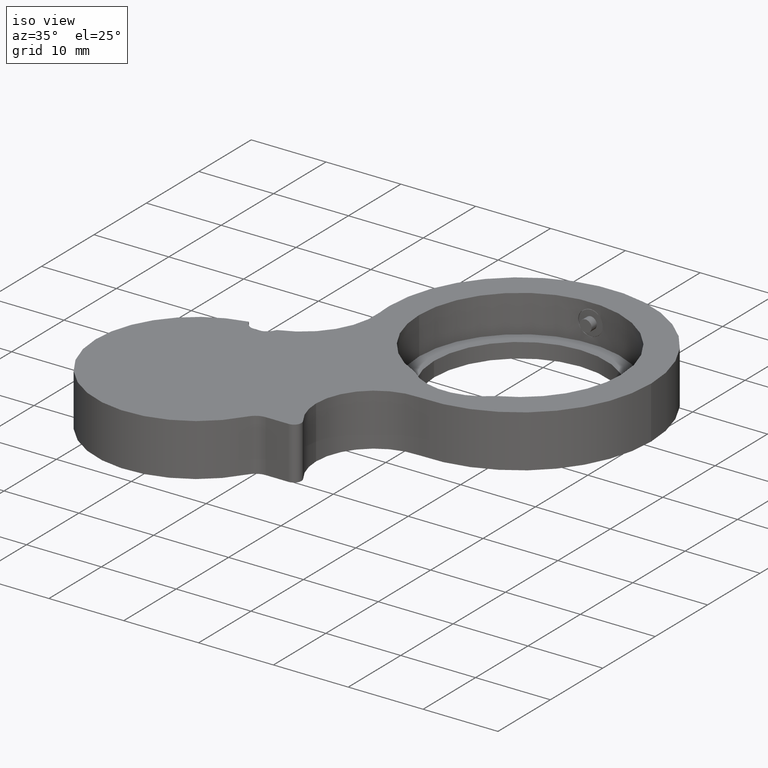
[diagram: clean part render]
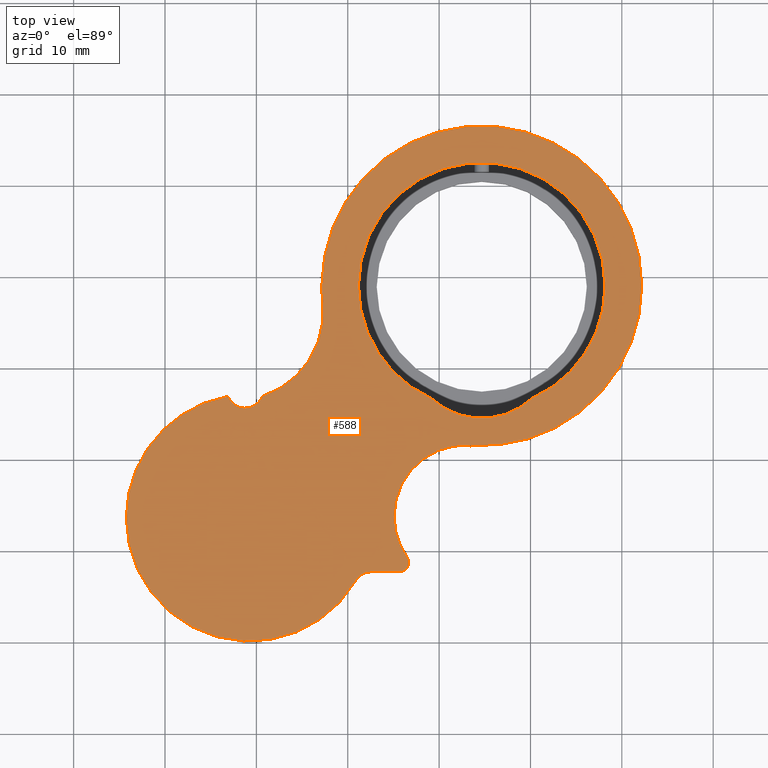
[diagram: tour spotlight — one face highlighted and labeled with its STEP entity id]
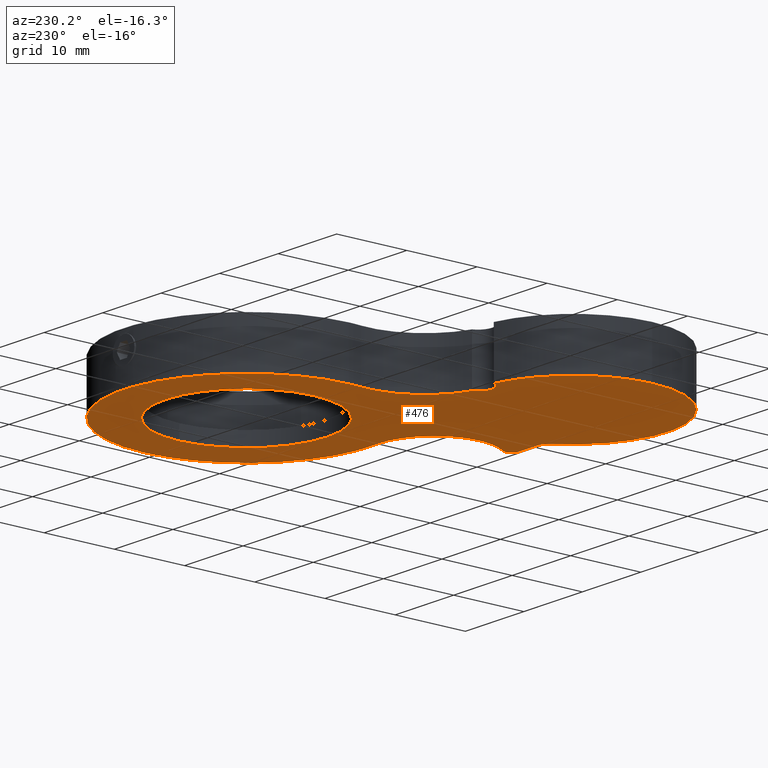
[diagram: tour spotlight — one face highlighted and labeled with its STEP entity id]
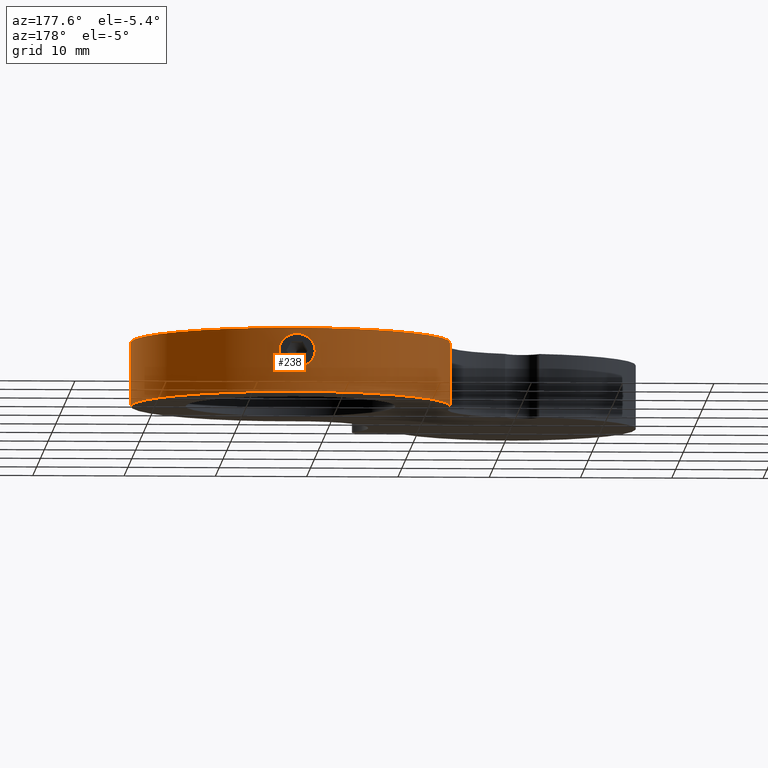
[diagram: tour spotlight — one face highlighted and labeled with its STEP entity id]
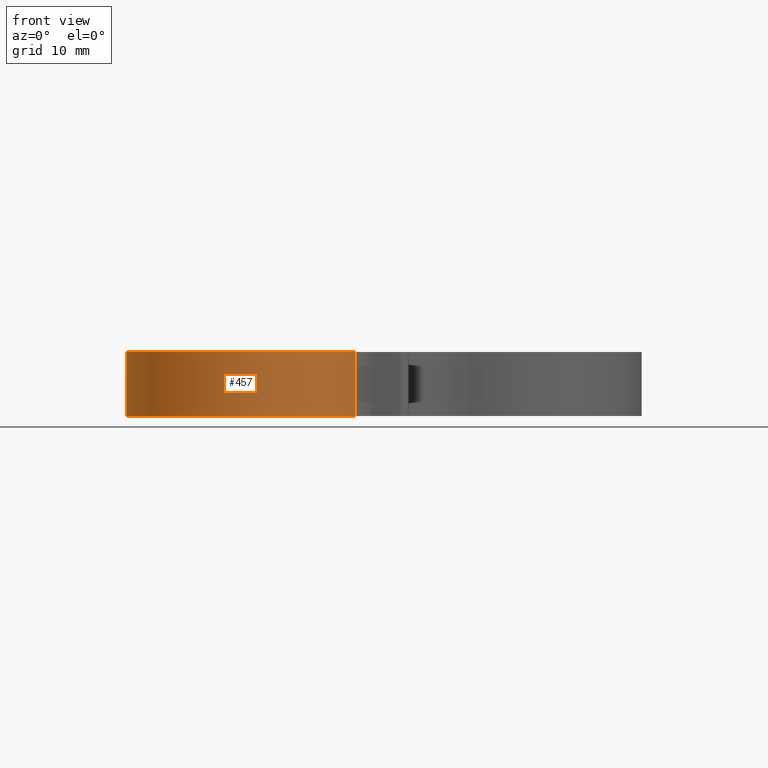
[diagram: tour spotlight — one face highlighted and labeled with its STEP entity id]
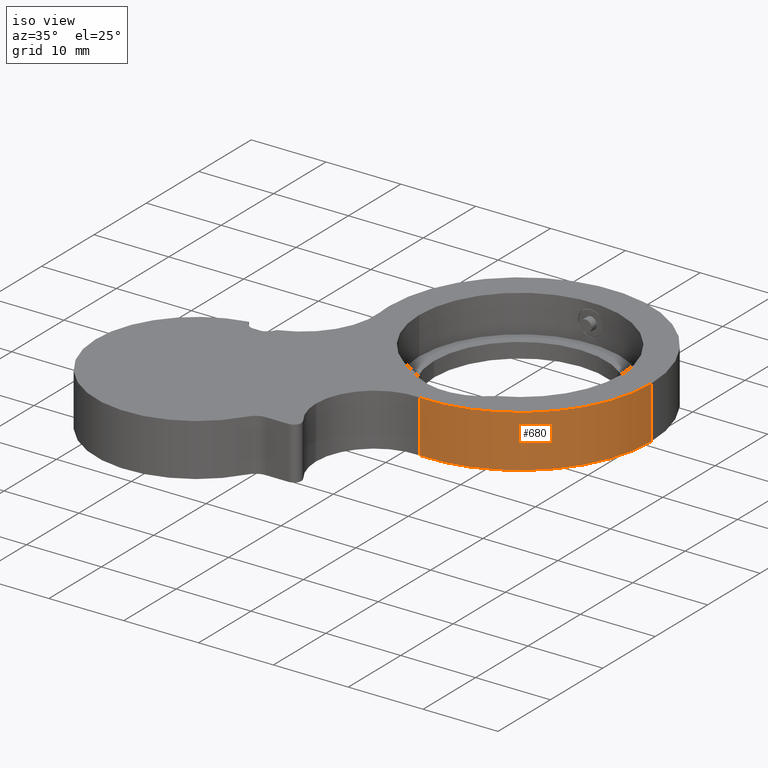
[diagram: tour spotlight — one face highlighted and labeled with its STEP entity id]
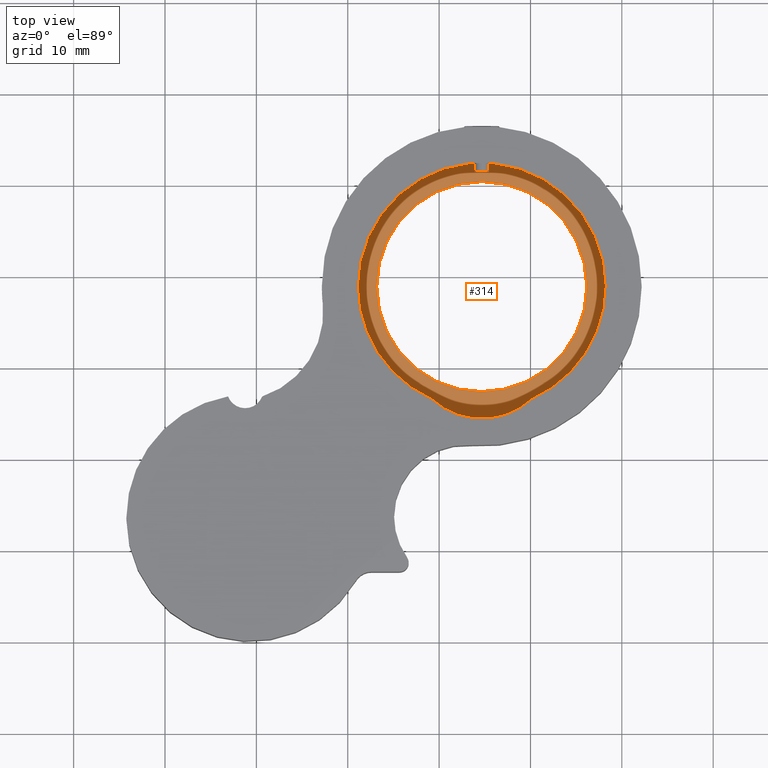
[diagram: tour spotlight — one face highlighted and labeled with its STEP entity id]
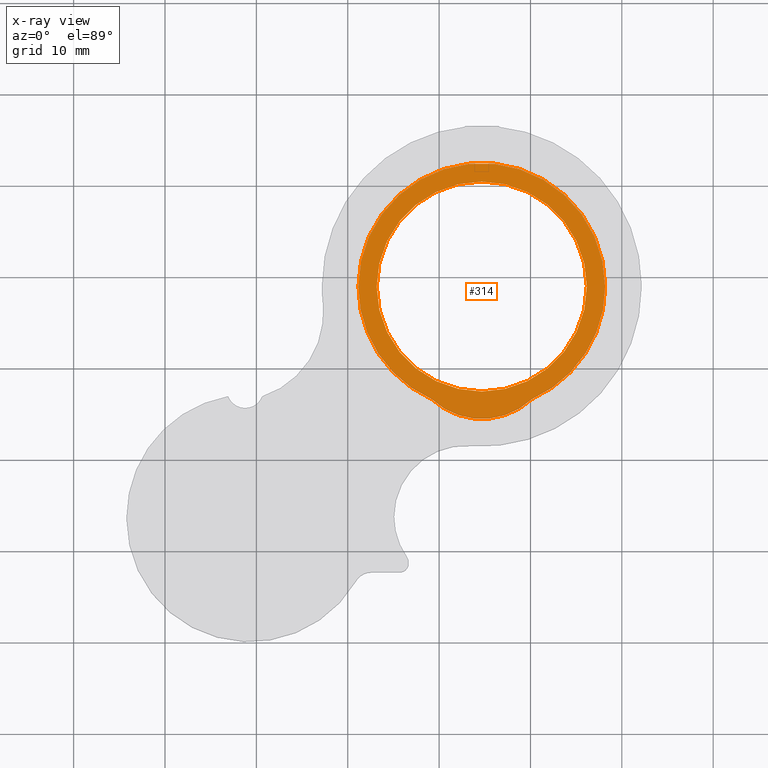
[diagram: x-ray of the same camera — body ghosted, this tour face saturated]
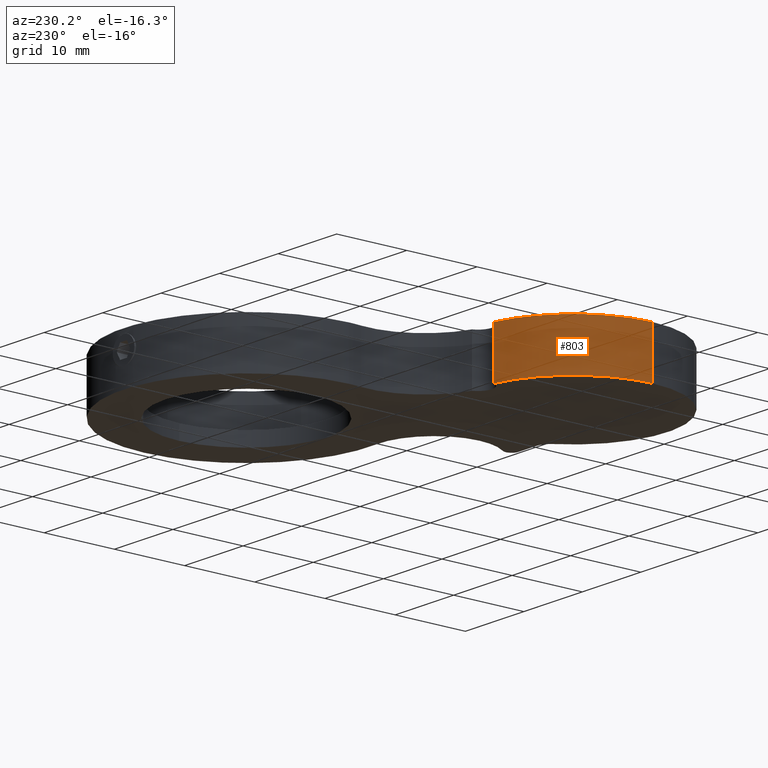
[diagram: tour spotlight — one face highlighted and labeled with its STEP entity id]
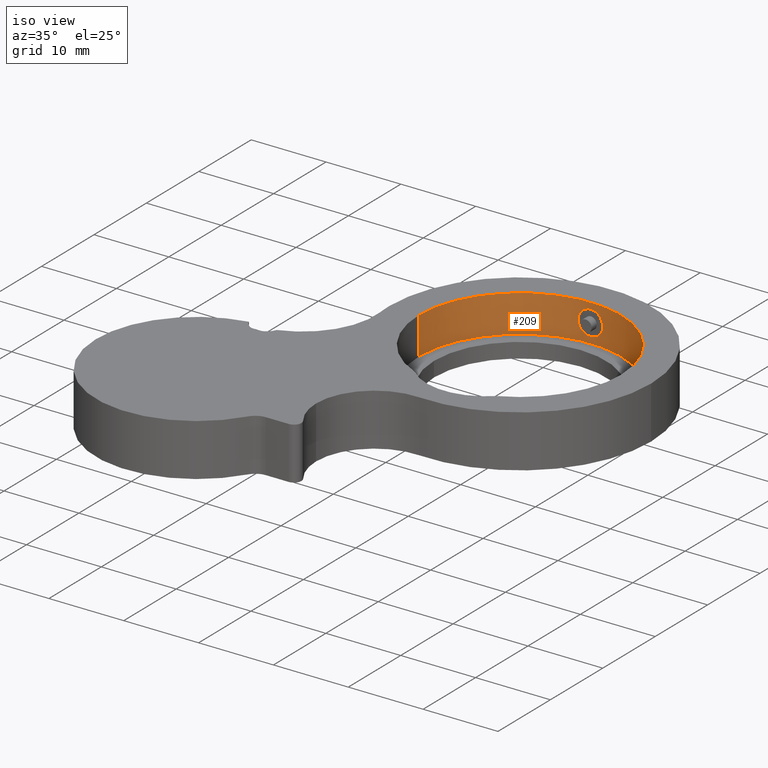
[diagram: tour spotlight — one face highlighted and labeled with its STEP entity id]
A machine part: a face-by-face anatomy tour. The part has 46 B-rep faces; the first image is the clean iso view, then the 8 largest visible faces are spotlighted one at a time (largest first), each with its STEP entity span.

Face 1 — top view, entity #588. In plain terms, the highlighted planar face has unit normal (-0, 0, -1).
Definition (entity closure, byte-faithful):
#1 = DIRECTION ( 'NONE',  ( -0.0000000000000000000, -0.0000000000000000000, -1.000000000000000000 ) ) ;
#19 = VERTEX_POINT ( 'NONE', #845 ) ;
#66 = CIRCLE ( 'NONE', #741, 17.50000000000000000 ) ;
#83 = EDGE_CURVE ( 'NONE', #1373, #19, #1330, .T. ) ;
#85 = AXIS2_PLACEMENT_3D ( 'NONE', #1129, #1463, #520 ) ;
#95 = DIRECTION ( 'NONE',  ( -0.0000000000000000000, -0.0000000000000000000, -1.000000000000000000 ) ) ;
#113 = ORIENTED_EDGE ( 'NONE', *, *, #1356, .T. ) ;
#114 = CARTESIAN_POINT ( 'NONE',  ( 2.604254786024343000, -12.33030543774678000, 59.50000000000000700 ) ) ;
#141 = ORIENTED_EDGE ( 'NONE', *, *, #646, .T. ) ;
#143 = EDGE_CURVE ( 'NONE', #760, #772, #1126, .T. ) ;
#159 = EDGE_CURVE ( 'NONE', #772, #350, #1364, .T. ) ;
#161 = DIRECTION ( 'NONE',  ( -0.0000000000000000000, -0.0000000000000000000, -1.000000000000000000 ) ) ;
#162 = CIRCLE ( 'NONE', #629, 9.699999999999999300 ) ;
#204 = DIRECTION ( 'NONE',  ( 1.000000000000000000, 0.0000000000000000000, 0.0000000000000000000 ) ) ;
#210 = CARTESIAN_POINT ( 'NONE',  ( 2.604254786024343000, -14.33030543774678000, 59.50000000000000700 ) ) ;
#215 = CARTESIAN_POINT ( 'NONE',  ( -10.73141167651137800, -6.430305437746779000, 59.50000000000000700 ) ) ;
#227 = DIRECTION ( 'NONE',  ( 0.0000000000000000000, 0.0000000000000000000, 1.000000000000000000 ) ) ;
#232 = EDGE_CURVE ( 'NONE', #1016, #268, #657, .T. ) ;
#237 = ORIENTED_EDGE ( 'NONE', *, *, #1404, .T. ) ;
#246 = AXIS2_PLACEMENT_3D ( 'NONE', #1311, #473, #974 ) ;
#248 = ORIENTED_EDGE ( 'NONE', *, *, #83, .T. ) ;
#268 = VERTEX_POINT ( 'NONE', #753 ) ;
#274 = VERTEX_POINT ( 'NONE', #1007 ) ;
#279 = DIRECTION ( 'NONE',  ( 0.0000000000000000000, 0.0000000000000000000, 1.000000000000000000 ) ) ;
#292 = CARTESIAN_POINT ( 'NONE',  ( 2.604254786024343000, -12.33030543774678000, 59.50000000000000700 ) ) ;
#297 = EDGE_CURVE ( 'NONE', #1348, #1060, #1366, .T. ) ;
#325 = CARTESIAN_POINT ( 'NONE',  ( 6.489555347423251200, -10.75483806787127800, 59.50000000000000700 ) ) ;
#339 = DIRECTION ( 'NONE',  ( 1.000000000000000000, 0.0000000000000000000, 0.0000000000000000000 ) ) ;
#347 = VERTEX_POINT ( 'NONE', #428 ) ;
#350 = VERTEX_POINT ( 'NONE', #545 ) ;
#352 = DIRECTION ( 'NONE',  ( 0.0000000000000000000, 0.0000000000000000000, 1.000000000000000000 ) ) ;
#372 = AXIS2_PLACEMENT_3D ( 'NONE', #215, #1403, #551 ) ;
#375 = CARTESIAN_POINT ( 'NONE',  ( 14.66858832348862100, 18.96969456225321700, 59.50000000000000700 ) ) ;
#379 = CIRCLE ( 'NONE', #484, 13.49999999999999800 ) ;
#397 = CARTESIAN_POINT ( 'NONE',  ( 5.671730606902049700, -12.33030543774678000, 59.50000000000000700 ) ) ;
#409 = CARTESIAN_POINT ( 'NONE',  ( 14.66858832348862100, 18.96969456225321700, 59.50000000000000700 ) ) ;
#428 = CARTESIAN_POINT ( 'NONE',  ( 0.8835236295681222500, -13.31095059903709900, 59.50000000000000700 ) ) ;
#436 = ORIENTED_EDGE ( 'NONE', *, *, #159, .T. ) ;
#449 = CARTESIAN_POINT ( 'NONE',  ( 32.16858832348862100, 18.96969456225322000, 59.50000000000000700 ) ) ;
#450 = ORIENTED_EDGE ( 'NONE', *, *, #612, .T. ) ;
#473 = DIRECTION ( 'NONE',  ( 0.0000000000000000000, 0.0000000000000000000, 1.000000000000000000 ) ) ;
#474 = AXIS2_PLACEMENT_3D ( 'NONE', #1307, #591, #714 ) ;
#484 = AXIS2_PLACEMENT_3D ( 'NONE', #409, #1242, #1362 ) ;
#503 = DIRECTION ( 'NONE',  ( 1.000000000000000000, 0.0000000000000000000, 0.0000000000000000000 ) ) ;
#508 = DIRECTION ( 'NONE',  ( 0.0000000000000000000, 0.0000000000000000000, 1.000000000000000000 ) ) ;
#515 = CARTESIAN_POINT ( 'NONE',  ( 14.66858832348862100, 18.96969456225321700, 59.50000000000000700 ) ) ;
#520 = DIRECTION ( 'NONE',  ( 1.000000000000000000, 0.0000000000000000000, 0.0000000000000000000 ) ) ;
#532 = CIRCLE ( 'NONE', #372, 13.50000000000000000 ) ;
#545 = CARTESIAN_POINT ( 'NONE',  ( -2.731663325095083500, 17.10388573872380400, 59.50000000000000700 ) ) ;
#551 = DIRECTION ( 'NONE',  ( 1.000000000000000000, 0.0000000000000000000, 0.0000000000000000000 ) ) ;
#571 = FACE_OUTER_BOUND ( 'NONE', #1419, .T. ) ;
#576 = CARTESIAN_POINT ( 'NONE',  ( 28.16858832348862400, 18.96969456225321700, 59.50000000000000700 ) ) ;
#588 = ADVANCED_FACE ( 'NONE', ( #1280, #571 ), #1372, .F. ) ;
#591 = DIRECTION ( 'NONE',  ( -0.0000000000000000000, -0.0000000000000000000, -1.000000000000000000 ) ) ;
#599 = ORIENTED_EDGE ( 'NONE', *, *, #232, .F. ) ;
#604 = ORIENTED_EDGE ( 'NONE', *, *, #1246, .F. ) ;
#612 = EDGE_CURVE ( 'NONE', #1098, #760, #66, .T. ) ;
#629 = AXIS2_PLACEMENT_3D ( 'NONE', #870, #161, #864 ) ;
#634 = ORIENTED_EDGE ( 'NONE', *, *, #297, .T. ) ;
#646 = EDGE_CURVE ( 'NONE', #347, #1348, #1206, .T. ) ;
#656 = CIRCLE ( 'NONE', #246, 8.000000000000000000 ) ;
#657 = CIRCLE ( 'NONE', #85, 13.49999999999999800 ) ;
#667 = VERTEX_POINT ( 'NONE', #325 ) ;
#685 = CARTESIAN_POINT ( 'NONE',  ( 5.671730606902049700, -11.33030543774677800, 59.50000000000000700 ) ) ;
#709 = DIRECTION ( 'NONE',  ( 1.000000000000000000, 0.0000000000000000000, 0.0000000000000000000 ) ) ;
#714 = DIRECTION ( 'NONE',  ( 1.000000000000000000, 0.0000000000000000000, 0.0000000000000000000 ) ) ;
#719 = AXIS2_PLACEMENT_3D ( 'NONE', #740, #1345, #1320 ) ;
#722 = CARTESIAN_POINT ( 'NONE',  ( 5.068588323488625300, -6.266192582842355900, 59.50000000000000700 ) ) ;
#727 = EDGE_CURVE ( 'NONE', #1060, #667, #1161, .T. ) ;
#740 = CARTESIAN_POINT ( 'NONE',  ( 12.86858832348862500, -6.266192582842355900, 59.50000000000000700 ) ) ;
#741 = AXIS2_PLACEMENT_3D ( 'NONE', #922, #1244, #204 ) ;
#753 = CARTESIAN_POINT ( 'NONE',  ( 1.168588323488621200, 18.96969456225321700, 59.50000000000000700 ) ) ;
#754 = DIRECTION ( 'NONE',  ( 1.000000000000000000, 0.0000000000000000000, 0.0000000000000000000 ) ) ;
#760 = VERTEX_POINT ( 'NONE', #449 ) ;
#772 = VERTEX_POINT ( 'NONE', #828 ) ;
#818 = EDGE_CURVE ( 'NONE', #1221, #1164, #656, .T. ) ;
#828 = CARTESIAN_POINT ( 'NONE',  ( -2.831411676511380400, 18.96969456225321700, 59.50000000000000700 ) ) ;
#845 = CARTESIAN_POINT ( 'NONE',  ( -13.10128162056133200, 6.860056349965723200, 59.50000000000000700 ) ) ;
#864 = DIRECTION ( 'NONE',  ( 1.000000000000000000, 0.0000000000000000000, 0.0000000000000000000 ) ) ;
#870 = CARTESIAN_POINT ( 'NONE',  ( -12.37637423888147700, 16.06969456225321800, 59.50000000000000700 ) ) ;
#871 = AXIS2_PLACEMENT_3D ( 'NONE', #375, #508, #503 ) ;
#875 = AXIS2_PLACEMENT_3D ( 'NONE', #997, #1339, #754 ) ;
#910 = DIRECTION ( 'NONE',  ( -0.0000000000000000000, 0.0000000000000000000, -1.000000000000000000 ) ) ;
#922 = CARTESIAN_POINT ( 'NONE',  ( 14.66858832348862100, 18.96969456225321700, 59.50000000000000700 ) ) ;
#936 = DIRECTION ( 'NONE',  ( 1.000000000000000000, 0.0000000000000000000, 0.0000000000000000000 ) ) ;
#974 = DIRECTION ( 'NONE',  ( 1.000000000000000000, 0.0000000000000000000, 0.0000000000000000000 ) ) ;
#981 = EDGE_LOOP ( 'NONE', ( #1108, #1113, #604, #599 ) ) ;
#992 = ORIENTED_EDGE ( 'NONE', *, *, #727, .T. ) ;
#997 = CARTESIAN_POINT ( 'NONE',  ( -10.73141167651137800, -6.430305437746779000, 59.50000000000000700 ) ) ;
#1003 = ORIENTED_EDGE ( 'NONE', *, *, #1091, .T. ) ;
#1007 = CARTESIAN_POINT ( 'NONE',  ( -24.23141167651137800, -6.430305437746779000, 59.50000000000000700 ) ) ;
#1015 = DIRECTION ( 'NONE',  ( -1.000000000000000000, 0.0000000000000000000, 0.0000000000000000000 ) ) ;
#1016 = VERTEX_POINT ( 'NONE', #576 ) ;
#1020 = VERTEX_POINT ( 'NONE', #722 ) ;
#1031 = EDGE_CURVE ( 'NONE', #1164, #1016, #1422, .T. ) ;
#1060 = VERTEX_POINT ( 'NONE', #397 ) ;
#1062 = EDGE_CURVE ( 'NONE', #350, #1373, #162, .T. ) ;
#1064 = CARTESIAN_POINT ( 'NONE',  ( 14.66858832348862100, 18.96969456225321700, 59.50000000000000700 ) ) ;
#1091 = EDGE_CURVE ( 'NONE', #19, #274, #1435, .T. ) ;
#1098 = VERTEX_POINT ( 'NONE', #1433 ) ;
#1100 = EDGE_CURVE ( 'NONE', #667, #1020, #1123, .T. ) ;
#1101 = AXIS2_PLACEMENT_3D ( 'NONE', #1278, #1, #339 ) ;
#1108 = ORIENTED_EDGE ( 'NONE', *, *, #1031, .F. ) ;
#1113 = ORIENTED_EDGE ( 'NONE', *, *, #818, .F. ) ;
#1118 = AXIS2_PLACEMENT_3D ( 'NONE', #1152, #95, #1015 ) ;
#1123 = CIRCLE ( 'NONE', #719, 7.800000000000001600 ) ;
#1126 = CIRCLE ( 'NONE', #871, 17.50000000000000000 ) ;
#1129 = CARTESIAN_POINT ( 'NONE',  ( 14.66858832348862100, 18.96969456225321700, 59.50000000000000700 ) ) ;
#1138 = CARTESIAN_POINT ( 'NONE',  ( 9.207591600627438300, 6.623540716099372900, 59.50000000000000700 ) ) ;
#1152 = CARTESIAN_POINT ( 'NONE',  ( 2.604254786024343000, -14.33030543774678000, 59.50000000000000700 ) ) ;
#1161 = CIRCLE ( 'NONE', #1238, 0.9999999999999991100 ) ;
#1164 = VERTEX_POINT ( 'NONE', #1450 ) ;
#1206 = CIRCLE ( 'NONE', #1118, 2.000000000000000000 ) ;
#1221 = VERTEX_POINT ( 'NONE', #1138 ) ;
#1227 = ORIENTED_EDGE ( 'NONE', *, *, #1062, .T. ) ;
#1233 = VECTOR ( 'NONE', #1235, 1000.000000000000000 ) ;
#1235 = DIRECTION ( 'NONE',  ( 1.000000000000000000, 0.0000000000000000000, 0.0000000000000000000 ) ) ;
#1238 = AXIS2_PLACEMENT_3D ( 'NONE', #685, #227, #936 ) ;
#1242 = DIRECTION ( 'NONE',  ( 0.0000000000000000000, 0.0000000000000000000, 1.000000000000000000 ) ) ;
#1244 = DIRECTION ( 'NONE',  ( 0.0000000000000000000, 0.0000000000000000000, 1.000000000000000000 ) ) ;
#1246 = EDGE_CURVE ( 'NONE', #268, #1221, #379, .T. ) ;
#1273 = AXIS2_PLACEMENT_3D ( 'NONE', #1064, #352, #709 ) ;
#1278 = CARTESIAN_POINT ( 'NONE',  ( 12.86858832348862500, -6.266192582842355900, 59.50000000000000700 ) ) ;
#1280 = FACE_BOUND ( 'NONE', #981, .T. ) ;
#1291 = ORIENTED_EDGE ( 'NONE', *, *, #1100, .T. ) ;
#1307 = CARTESIAN_POINT ( 'NONE',  ( -11.23141167651137800, 7.569694562253220100, 59.50000000000000700 ) ) ;
#1311 = CARTESIAN_POINT ( 'NONE',  ( 14.66858832348862100, 12.46969456225322000, 59.50000000000000700 ) ) ;
#1320 = DIRECTION ( 'NONE',  ( 1.000000000000000000, 0.0000000000000000000, 0.0000000000000000000 ) ) ;
#1325 = AXIS2_PLACEMENT_3D ( 'NONE', #210, #910, #1501 ) ;
#1330 = CIRCLE ( 'NONE', #474, 1.999999999999993100 ) ;
#1337 = CIRCLE ( 'NONE', #1101, 7.800000000000001600 ) ;
#1338 = DIRECTION ( 'NONE',  ( 1.000000000000000000, 0.0000000000000000000, 0.0000000000000000000 ) ) ;
#1339 = DIRECTION ( 'NONE',  ( 0.0000000000000000000, 0.0000000000000000000, 1.000000000000000000 ) ) ;
#1345 = DIRECTION ( 'NONE',  ( -0.0000000000000000000, -0.0000000000000000000, -1.000000000000000000 ) ) ;
#1348 = VERTEX_POINT ( 'NONE', #114 ) ;
#1356 = EDGE_CURVE ( 'NONE', #274, #347, #532, .T. ) ;
#1362 = DIRECTION ( 'NONE',  ( 1.000000000000000000, 0.0000000000000000000, 0.0000000000000000000 ) ) ;
#1364 = CIRCLE ( 'NONE', #1426, 17.50000000000000000 ) ;
#1366 = LINE ( 'NONE', #292, #1233 ) ;
#1372 = PLANE ( 'NONE',  #1325 ) ;
#1373 = VERTEX_POINT ( 'NONE', #1390 ) ;
#1390 = CARTESIAN_POINT ( 'NONE',  ( -9.365897164350354100, 6.848684434088166700, 59.50000000000000700 ) ) ;
#1403 = DIRECTION ( 'NONE',  ( 0.0000000000000000000, 0.0000000000000000000, 1.000000000000000000 ) ) ;
#1404 = EDGE_CURVE ( 'NONE', #1020, #1098, #1337, .T. ) ;
#1419 = EDGE_LOOP ( 'NONE', ( #141, #634, #992, #1291, #237, #450, #1420, #436, #1227, #248, #1003, #113 ) ) ;
#1420 = ORIENTED_EDGE ( 'NONE', *, *, #143, .T. ) ;
#1422 = CIRCLE ( 'NONE', #1273, 13.49999999999999800 ) ;
#1426 = AXIS2_PLACEMENT_3D ( 'NONE', #515, #279, #1338 ) ;
#1433 = CARTESIAN_POINT ( 'NONE',  ( 13.42352903495107000, 1.514041398649560200, 59.50000000000000700 ) ) ;
#1435 = CIRCLE ( 'NONE', #875, 13.50000000000000000 ) ;
#1450 = CARTESIAN_POINT ( 'NONE',  ( 20.12958504634979900, 6.623540716099371100, 59.50000000000000700 ) ) ;
#1463 = DIRECTION ( 'NONE',  ( 0.0000000000000000000, 0.0000000000000000000, 1.000000000000000000 ) ) ;
#1501 = DIRECTION ( 'NONE',  ( -1.000000000000000000, 0.0000000000000000000, 0.0000000000000000000 ) ) ;

Face 2 — auxiliary view, entity #476. In plain terms, the highlighted planar face has unit normal (-0, 0, -1).
Definition (entity closure, byte-faithful):
#27 = DIRECTION ( 'NONE',  ( 1.000000000000000000, 0.0000000000000000000, 0.0000000000000000000 ) ) ;
#39 = EDGE_CURVE ( 'NONE', #1090, #1153, #148, .T. ) ;
#45 = VERTEX_POINT ( 'NONE', #972 ) ;
#50 = VERTEX_POINT ( 'NONE', #251 ) ;
#52 = CARTESIAN_POINT ( 'NONE',  ( 2.604254786024343000, -12.33030543774678000, 52.50000000000000700 ) ) ;
#71 = ORIENTED_EDGE ( 'NONE', *, *, #1163, .F. ) ;
#72 = AXIS2_PLACEMENT_3D ( 'NONE', #1460, #173, #1121 ) ;
#90 = ORIENTED_EDGE ( 'NONE', *, *, #1333, .F. ) ;
#98 = CARTESIAN_POINT ( 'NONE',  ( 14.66858832348862100, 18.96969456225321700, 52.50000000000000700 ) ) ;
#101 = VERTEX_POINT ( 'NONE', #365 ) ;
#117 = EDGE_LOOP ( 'NONE', ( #764, #383 ) ) ;
#120 = CARTESIAN_POINT ( 'NONE',  ( -2.731663325095083500, 17.10388573872380400, 52.50000000000000700 ) ) ;
#148 = CIRCLE ( 'NONE', #1037, 7.800000000000001600 ) ;
#155 = EDGE_CURVE ( 'NONE', #50, #299, #748, .T. ) ;
#156 = DIRECTION ( 'NONE',  ( -1.000000000000000000, 0.0000000000000000000, 0.0000000000000000000 ) ) ;
#173 = DIRECTION ( 'NONE',  ( -0.0000000000000000000, -0.0000000000000000000, -1.000000000000000000 ) ) ;
#189 = AXIS2_PLACEMENT_3D ( 'NONE', #1518, #1505, #790 ) ;
#194 = CIRCLE ( 'NONE', #461, 13.50000000000000000 ) ;
#213 = CIRCLE ( 'NONE', #1454, 17.50000000000000000 ) ;
#217 = AXIS2_PLACEMENT_3D ( 'NONE', #1224, #1239, #294 ) ;
#225 = DIRECTION ( 'NONE',  ( 1.000000000000000000, 0.0000000000000000000, 0.0000000000000000000 ) ) ;
#240 = ORIENTED_EDGE ( 'NONE', *, *, #39, .F. ) ;
#251 = CARTESIAN_POINT ( 'NONE',  ( 0.8835236295681222500, -13.31095059903709900, 52.50000000000000700 ) ) ;
#273 = CARTESIAN_POINT ( 'NONE',  ( 13.42352903495107000, 1.514041398649560200, 52.50000000000000700 ) ) ;
#286 = DIRECTION ( 'NONE',  ( 0.0000000000000000000, 0.0000000000000000000, 1.000000000000000000 ) ) ;
#293 = CIRCLE ( 'NONE', #850, 11.50000000000000400 ) ;
#294 = DIRECTION ( 'NONE',  ( 1.000000000000000000, 0.0000000000000000000, 0.0000000000000000000 ) ) ;
#299 = VERTEX_POINT ( 'NONE', #899 ) ;
#337 = CARTESIAN_POINT ( 'NONE',  ( -13.10128162056133200, 6.860056349965723200, 52.50000000000000700 ) ) ;
#362 = ORIENTED_EDGE ( 'NONE', *, *, #883, .F. ) ;
#363 = DIRECTION ( 'NONE',  ( -0.0000000000000000000, -0.0000000000000000000, -1.000000000000000000 ) ) ;
#365 = CARTESIAN_POINT ( 'NONE',  ( -2.831411676511380400, 18.96969456225321700, 52.50000000000000700 ) ) ;
#368 = VECTOR ( 'NONE', #878, 1000.000000000000000 ) ;
#382 = DIRECTION ( 'NONE',  ( -1.000000000000000000, 0.0000000000000000000, 0.0000000000000000000 ) ) ;
#383 = ORIENTED_EDGE ( 'NONE', *, *, #865, .T. ) ;
#384 = CARTESIAN_POINT ( 'NONE',  ( 2.604254786024343000, -14.33030543774678000, 52.50000000000000700 ) ) ;
#388 = DIRECTION ( 'NONE',  ( -0.0000000000000000000, 0.0000000000000000000, -1.000000000000000000 ) ) ;
#411 = EDGE_CURVE ( 'NONE', #1033, #1363, #293, .T. ) ;
#417 = CIRCLE ( 'NONE', #1305, 13.50000000000000000 ) ;
#461 = AXIS2_PLACEMENT_3D ( 'NONE', #556, #1263, #681 ) ;
#476 = ADVANCED_FACE ( 'NONE', ( #1099, #1203 ), #757, .T. ) ;
#490 = EDGE_CURVE ( 'NONE', #613, #50, #417, .T. ) ;
#492 = LINE ( 'NONE', #52, #368 ) ;
#502 = CIRCLE ( 'NONE', #72, 1.999999999999993100 ) ;
#529 = EDGE_CURVE ( 'NONE', #1317, #791, #1321, .T. ) ;
#543 = CIRCLE ( 'NONE', #189, 11.50000000000000400 ) ;
#552 = ORIENTED_EDGE ( 'NONE', *, *, #1122, .F. ) ;
#556 = CARTESIAN_POINT ( 'NONE',  ( -10.73141167651137800, -6.430305437746779000, 52.50000000000000700 ) ) ;
#581 = CARTESIAN_POINT ( 'NONE',  ( -9.365897164350354100, 6.848684434088166700, 52.50000000000000700 ) ) ;
#610 = CIRCLE ( 'NONE', #1506, 17.50000000000000000 ) ;
#613 = VERTEX_POINT ( 'NONE', #1380 ) ;
#632 = CARTESIAN_POINT ( 'NONE',  ( 5.068588323488625300, -6.266192582842355900, 52.50000000000000700 ) ) ;
#650 = ORIENTED_EDGE ( 'NONE', *, *, #778, .F. ) ;
#658 = ORIENTED_EDGE ( 'NONE', *, *, #490, .F. ) ;
#673 = DIRECTION ( 'NONE',  ( 0.0000000000000000000, 0.0000000000000000000, 1.000000000000000000 ) ) ;
#681 = DIRECTION ( 'NONE',  ( 1.000000000000000000, 0.0000000000000000000, 0.0000000000000000000 ) ) ;
#696 = AXIS2_PLACEMENT_3D ( 'NONE', #1516, #1056, #1394 ) ;
#720 = VERTEX_POINT ( 'NONE', #337 ) ;
#748 = CIRCLE ( 'NONE', #1446, 2.000000000000000000 ) ;
#757 = PLANE ( 'NONE',  #1092 ) ;
#764 = ORIENTED_EDGE ( 'NONE', *, *, #411, .T. ) ;
#773 = CIRCLE ( 'NONE', #696, 17.50000000000000000 ) ;
#778 = EDGE_CURVE ( 'NONE', #45, #1090, #849, .T. ) ;
#783 = ORIENTED_EDGE ( 'NONE', *, *, #529, .F. ) ;
#790 = DIRECTION ( 'NONE',  ( 1.000000000000000000, 0.0000000000000000000, 0.0000000000000000000 ) ) ;
#791 = VERTEX_POINT ( 'NONE', #581 ) ;
#797 = CARTESIAN_POINT ( 'NONE',  ( 5.671730606902049700, -11.33030543774677800, 52.50000000000000700 ) ) ;
#832 = AXIS2_PLACEMENT_3D ( 'NONE', #797, #673, #225 ) ;
#833 = CARTESIAN_POINT ( 'NONE',  ( 3.168588323488616100, 18.96969456225321700, 52.50000000000000700 ) ) ;
#849 = CIRCLE ( 'NONE', #1197, 7.800000000000001600 ) ;
#850 = AXIS2_PLACEMENT_3D ( 'NONE', #98, #919, #1504 ) ;
#865 = EDGE_CURVE ( 'NONE', #1363, #1033, #543, .T. ) ;
#876 = DIRECTION ( 'NONE',  ( 0.0000000000000000000, 0.0000000000000000000, 1.000000000000000000 ) ) ;
#878 = DIRECTION ( 'NONE',  ( 1.000000000000000000, 0.0000000000000000000, 0.0000000000000000000 ) ) ;
#880 = CARTESIAN_POINT ( 'NONE',  ( 2.604254786024343000, -14.33030543774678000, 52.50000000000000700 ) ) ;
#883 = EDGE_CURVE ( 'NONE', #1202, #45, #1388, .T. ) ;
#899 = CARTESIAN_POINT ( 'NONE',  ( 2.604254786024343000, -12.33030543774678000, 52.50000000000000700 ) ) ;
#904 = EDGE_LOOP ( 'NONE', ( #938, #658, #90, #71, #783, #1243, #1511, #968, #240, #650, #362, #552 ) ) ;
#919 = DIRECTION ( 'NONE',  ( 0.0000000000000000000, 0.0000000000000000000, 1.000000000000000000 ) ) ;
#938 = ORIENTED_EDGE ( 'NONE', *, *, #155, .F. ) ;
#968 = ORIENTED_EDGE ( 'NONE', *, *, #1237, .F. ) ;
#972 = CARTESIAN_POINT ( 'NONE',  ( 6.489555347423251200, -10.75483806787127800, 52.50000000000000700 ) ) ;
#991 = DIRECTION ( 'NONE',  ( 1.000000000000000000, 0.0000000000000000000, 0.0000000000000000000 ) ) ;
#1009 = CARTESIAN_POINT ( 'NONE',  ( 14.66858832348862100, 18.96969456225321700, 52.50000000000000700 ) ) ;
#1019 = CARTESIAN_POINT ( 'NONE',  ( 5.671730606902049700, -12.33030543774678000, 52.50000000000000700 ) ) ;
#1033 = VERTEX_POINT ( 'NONE', #833 ) ;
#1037 = AXIS2_PLACEMENT_3D ( 'NONE', #1089, #1186, #1205 ) ;
#1042 = VERTEX_POINT ( 'NONE', #1416 ) ;
#1056 = DIRECTION ( 'NONE',  ( 0.0000000000000000000, 0.0000000000000000000, 1.000000000000000000 ) ) ;
#1073 = CARTESIAN_POINT ( 'NONE',  ( 12.86858832348862500, -6.266192582842355900, 52.50000000000000700 ) ) ;
#1089 = CARTESIAN_POINT ( 'NONE',  ( 12.86858832348862500, -6.266192582842355900, 52.50000000000000700 ) ) ;
#1090 = VERTEX_POINT ( 'NONE', #632 ) ;
#1092 = AXIS2_PLACEMENT_3D ( 'NONE', #880, #388, #382 ) ;
#1099 = FACE_OUTER_BOUND ( 'NONE', #904, .T. ) ;
#1102 = DIRECTION ( 'NONE',  ( -0.0000000000000000000, -0.0000000000000000000, -1.000000000000000000 ) ) ;
#1121 = DIRECTION ( 'NONE',  ( 1.000000000000000000, 0.0000000000000000000, 0.0000000000000000000 ) ) ;
#1122 = EDGE_CURVE ( 'NONE', #299, #1202, #492, .T. ) ;
#1135 = EDGE_CURVE ( 'NONE', #101, #1317, #610, .T. ) ;
#1153 = VERTEX_POINT ( 'NONE', #273 ) ;
#1163 = EDGE_CURVE ( 'NONE', #791, #720, #502, .T. ) ;
#1186 = DIRECTION ( 'NONE',  ( -0.0000000000000000000, -0.0000000000000000000, -1.000000000000000000 ) ) ;
#1197 = AXIS2_PLACEMENT_3D ( 'NONE', #1073, #363, #27 ) ;
#1202 = VERTEX_POINT ( 'NONE', #1019 ) ;
#1203 = FACE_BOUND ( 'NONE', #117, .T. ) ;
#1205 = DIRECTION ( 'NONE',  ( 1.000000000000000000, 0.0000000000000000000, 0.0000000000000000000 ) ) ;
#1224 = CARTESIAN_POINT ( 'NONE',  ( -12.37637423888147700, 16.06969456225321800, 52.50000000000000700 ) ) ;
#1234 = DIRECTION ( 'NONE',  ( 1.000000000000000000, 0.0000000000000000000, 0.0000000000000000000 ) ) ;
#1237 = EDGE_CURVE ( 'NONE', #1153, #1042, #213, .T. ) ;
#1239 = DIRECTION ( 'NONE',  ( -0.0000000000000000000, -0.0000000000000000000, -1.000000000000000000 ) ) ;
#1243 = ORIENTED_EDGE ( 'NONE', *, *, #1135, .F. ) ;
#1263 = DIRECTION ( 'NONE',  ( 0.0000000000000000000, 0.0000000000000000000, 1.000000000000000000 ) ) ;
#1305 = AXIS2_PLACEMENT_3D ( 'NONE', #1453, #876, #1234 ) ;
#1317 = VERTEX_POINT ( 'NONE', #120 ) ;
#1321 = CIRCLE ( 'NONE', #217, 9.699999999999999300 ) ;
#1333 = EDGE_CURVE ( 'NONE', #720, #613, #194, .T. ) ;
#1363 = VERTEX_POINT ( 'NONE', #1509 ) ;
#1368 = EDGE_CURVE ( 'NONE', #1042, #101, #773, .T. ) ;
#1380 = CARTESIAN_POINT ( 'NONE',  ( -24.23141167651137800, -6.430305437746779000, 52.50000000000000700 ) ) ;
#1388 = CIRCLE ( 'NONE', #832, 0.9999999999999991100 ) ;
#1394 = DIRECTION ( 'NONE',  ( 1.000000000000000000, 0.0000000000000000000, 0.0000000000000000000 ) ) ;
#1416 = CARTESIAN_POINT ( 'NONE',  ( 32.16858832348862100, 18.96969456225322000, 52.50000000000000700 ) ) ;
#1446 = AXIS2_PLACEMENT_3D ( 'NONE', #384, #1102, #156 ) ;
#1453 = CARTESIAN_POINT ( 'NONE',  ( -10.73141167651137800, -6.430305437746779000, 52.50000000000000700 ) ) ;
#1454 = AXIS2_PLACEMENT_3D ( 'NONE', #1477, #1482, #1494 ) ;
#1460 = CARTESIAN_POINT ( 'NONE',  ( -11.23141167651137800, 7.569694562253220100, 52.50000000000000700 ) ) ;
#1477 = CARTESIAN_POINT ( 'NONE',  ( 14.66858832348862100, 18.96969456225321700, 52.50000000000000700 ) ) ;
#1482 = DIRECTION ( 'NONE',  ( 0.0000000000000000000, 0.0000000000000000000, 1.000000000000000000 ) ) ;
#1494 = DIRECTION ( 'NONE',  ( 1.000000000000000000, 0.0000000000000000000, 0.0000000000000000000 ) ) ;
#1504 = DIRECTION ( 'NONE',  ( 1.000000000000000000, 0.0000000000000000000, 0.0000000000000000000 ) ) ;
#1505 = DIRECTION ( 'NONE',  ( 0.0000000000000000000, 0.0000000000000000000, 1.000000000000000000 ) ) ;
#1506 = AXIS2_PLACEMENT_3D ( 'NONE', #1009, #286, #991 ) ;
#1509 = CARTESIAN_POINT ( 'NONE',  ( 26.16858832348862400, 18.96969456225321700, 52.50000000000000700 ) ) ;
#1511 = ORIENTED_EDGE ( 'NONE', *, *, #1368, .F. ) ;
#1516 = CARTESIAN_POINT ( 'NONE',  ( 14.66858832348862100, 18.96969456225321700, 52.50000000000000700 ) ) ;
#1518 = CARTESIAN_POINT ( 'NONE',  ( 14.66858832348862100, 18.96969456225321700, 52.50000000000000700 ) ) ;

Face 3 — auxiliary view, entity #238. In plain terms, the highlighted cylindrical surface (partial cylindrical patch) has radius 17.5 mm, axis along (-0, -0, -1).
Definition (entity closure, byte-faithful):
#13 = CARTESIAN_POINT ( 'NONE',  ( 15.50025397243963000, 36.45104908275978100, 58.44118180907817400 ) ) ;
#37 = VECTOR ( 'NONE', #395, 1000.000000000000000 ) ;
#48 = ORIENTED_EDGE ( 'NONE', *, *, #621, .T. ) ;
#64 = CARTESIAN_POINT ( 'NONE',  ( -2.831411676511380400, 18.96969456225321700, 59.50000000000000700 ) ) ;
#65 = DIRECTION ( 'NONE',  ( -0.0000000000000000000, -0.0000000000000000000, -1.000000000000000000 ) ) ;
#88 = CARTESIAN_POINT ( 'NONE',  ( 13.84187883083747800, 36.45038714157282600, 58.43201840047491700 ) ) ;
#101 = VERTEX_POINT ( 'NONE', #365 ) ;
#104 = CARTESIAN_POINT ( 'NONE',  ( 14.23990057560956600, 36.46476300308064800, 55.40301485851746600 ) ) ;
#118 = CARTESIAN_POINT ( 'NONE',  ( 16.15189487208151700, 36.40676786061472100, 57.73075637029931100 ) ) ;
#125 = CARTESIAN_POINT ( 'NONE',  ( 15.91214693928155000, 36.42562096581014000, 58.08978700896862100 ) ) ;
#143 = EDGE_CURVE ( 'NONE', #760, #772, #1126, .T. ) ;
#153 = ORIENTED_EDGE ( 'NONE', *, *, #1368, .T. ) ;
#196 = CARTESIAN_POINT ( 'NONE',  ( 13.42464764290810600, 36.42559815981653100, 55.91051380649695800 ) ) ;
#214 = CARTESIAN_POINT ( 'NONE',  ( 13.01854944931598900, 36.39173151879916200, 56.89291197086802800 ) ) ;
#218 = CARTESIAN_POINT ( 'NONE',  ( 16.31867229501018800, 36.39172724773877100, 57.10769623685201400 ) ) ;
#221 = CARTESIAN_POINT ( 'NONE',  ( 15.68230840868706200, 36.44097501174783800, 55.68047764927823100 ) ) ;
#231 = CARTESIAN_POINT ( 'NONE',  ( 16.10127857872107900, 36.41105326797321600, 57.82553702200574000 ) ) ;
#238 = ADVANCED_FACE ( 'NONE', ( #951, #312 ), #816, .T. ) ;
#263 = LINE ( 'NONE', #776, #1168 ) ;
#296 = DIRECTION ( 'NONE',  ( -1.000000000000000000, 0.0000000000000000000, 0.0000000000000000000 ) ) ;
#306 = CARTESIAN_POINT ( 'NONE',  ( 13.57869087195730500, 36.43589284262817100, 55.75641963356510200 ) ) ;
#310 = CARTESIAN_POINT ( 'NONE',  ( 13.02929447380083700, 36.39275869821301500, 56.78352491238621300 ) ) ;
#312 = FACE_OUTER_BOUND ( 'NONE', #1438, .T. ) ;
#327 = CARTESIAN_POINT ( 'NONE',  ( 16.15087147047406900, 36.40685514198527500, 56.26718472269747900 ) ) ;
#365 = CARTESIAN_POINT ( 'NONE',  ( -2.831411676511380400, 18.96969456225321700, 52.50000000000000700 ) ) ;
#375 = CARTESIAN_POINT ( 'NONE',  ( 14.66858832348862100, 18.96969456225321700, 59.50000000000000700 ) ) ;
#395 = DIRECTION ( 'NONE',  ( -0.0000000000000000000, -0.0000000000000000000, -1.000000000000000000 ) ) ;
#404 = EDGE_LOOP ( 'NONE', ( #1360, #1023 ) ) ;
#406 = EDGE_CURVE ( 'NONE', #690, #511, #659, .T. ) ;
#414 = CARTESIAN_POINT ( 'NONE',  ( 14.66858832348862100, 36.46969456225321700, 58.64999999999999900 ) ) ;
#423 = CARTESIAN_POINT ( 'NONE',  ( 14.13644136706908400, 36.46188748807010400, 58.56557232212986700 ) ) ;
#434 = CARTESIAN_POINT ( 'NONE',  ( 14.56087124569443200, 36.46969456225321700, 55.35000000000000900 ) ) ;
#449 = CARTESIAN_POINT ( 'NONE',  ( 32.16858832348862100, 18.96969456225322000, 59.50000000000000700 ) ) ;
#503 = DIRECTION ( 'NONE',  ( 1.000000000000000000, 0.0000000000000000000, 0.0000000000000000000 ) ) ;
#508 = DIRECTION ( 'NONE',  ( 0.0000000000000000000, 0.0000000000000000000, 1.000000000000000000 ) ) ;
#511 = VERTEX_POINT ( 'NONE', #641 ) ;
#538 = EDGE_CURVE ( 'NONE', #772, #101, #749, .T. ) ;
#540 = CARTESIAN_POINT ( 'NONE',  ( 14.55950380447543700, 36.46969456225322400, 58.65000000000000600 ) ) ;
#557 = CARTESIAN_POINT ( 'NONE',  ( 14.66858832348862100, 36.46969456225321700, 55.35000000000000900 ) ) ;
#570 = CARTESIAN_POINT ( 'NONE',  ( 15.98030292712855000, 36.42056896886266100, 55.99325939684623400 ) ) ;
#606 = ORIENTED_EDGE ( 'NONE', *, *, #538, .F. ) ;
#621 = EDGE_CURVE ( 'NONE', #760, #1042, #263, .T. ) ;
#641 = CARTESIAN_POINT ( 'NONE',  ( 14.66858832348862100, 36.46969456225321700, 55.35000000000000900 ) ) ;
#655 = CARTESIAN_POINT ( 'NONE',  ( 13.57769501997898200, 36.43582642802177700, 58.24258829989106800 ) ) ;
#659 = B_SPLINE_CURVE_WITH_KNOTS ( 'NONE', 3,
 ( #1259, #540, #1141, #679, #423, #1032, #88, #1384, #655, #1134, #774, #666, #672, #214, #310, #1145, #1498, #788, #914, #924, #196, #306, #1154, #1377, #796, #1039, #104, #907, #434, #557 ),
 .UNSPECIFIED., .F., .F.,
 ( 4, 2, 2, 2, 2, 2, 2, 2, 2, 2, 2, 2, 2, 2, 4 ),
 ( 0.0000000000000000000, 0.0003225948168731001400, 0.0006451896337462002700, 0.0009677844506193005200, 0.001290379267492400500, 0.001935568901238611700, 0.002580758534984822800, 0.002903353351857929100, 0.003225948168731034500, 0.003548542985604140400, 0.003871137802477245900, 0.004193732619350351700, 0.004516327436223458100, 0.004838922253096563500, 0.005161517069969669800 ),
 .UNSPECIFIED. ) ;
#666 = CARTESIAN_POINT ( 'NONE',  ( 13.06203255510817000, 36.39599084756154900, 57.43321075301982100 ) ) ;
#672 = CARTESIAN_POINT ( 'NONE',  ( 13.01866639617101700, 36.39174259455669600, 57.21596796710091600 ) ) ;
#674 = CARTESIAN_POINT ( 'NONE',  ( 14.88397216333394200, 36.46969456225323100, 55.35000000000000900 ) ) ;
#679 = CARTESIAN_POINT ( 'NONE',  ( 14.24127220645609000, 36.46479482135245600, 58.59733196529785500 ) ) ;
#690 = VERTEX_POINT ( 'NONE', #414 ) ;
#693 = EDGE_CURVE ( 'NONE', #511, #690, #1067, .T. ) ;
#696 = AXIS2_PLACEMENT_3D ( 'NONE', #1516, #1056, #1394 ) ;
#700 = CARTESIAN_POINT ( 'NONE',  ( 16.26624922744398200, 36.39662544195315500, 57.42607608637519000 ) ) ;
#702 = CARTESIAN_POINT ( 'NONE',  ( 15.98173371883305000, 36.42046085029108600, 58.00486910233414100 ) ) ;
#749 = LINE ( 'NONE', #64, #37 ) ;
#760 = VERTEX_POINT ( 'NONE', #449 ) ;
#769 = CARTESIAN_POINT ( 'NONE',  ( 15.10112637059793000, 36.46547672814849500, 55.39326428071101600 ) ) ;
#772 = VERTEX_POINT ( 'NONE', #828 ) ;
#773 = CIRCLE ( 'NONE', #696, 17.50000000000000000 ) ;
#774 = CARTESIAN_POINT ( 'NONE',  ( 13.22661557020016200, 36.41038085147478400, 57.83030571009852100 ) ) ;
#776 = CARTESIAN_POINT ( 'NONE',  ( 32.16858832348862100, 18.96969456225322000, 59.50000000000000700 ) ) ;
#777 = CARTESIAN_POINT ( 'NONE',  ( 14.66858832348862100, 18.96969456225321700, 59.50000000000000700 ) ) ;
#788 = CARTESIAN_POINT ( 'NONE',  ( 13.18534724434455500, 36.40677342083721200, 56.26911642993363900 ) ) ;
#796 = CARTESIAN_POINT ( 'NONE',  ( 13.93716292425933600, 36.45468861240534900, 55.51702400101407900 ) ) ;
#811 = CARTESIAN_POINT ( 'NONE',  ( 15.91061250003773800, 36.42573057229498100, 55.90846765683982500 ) ) ;
#816 = CYLINDRICAL_SURFACE ( 'NONE', #1068, 17.50000000000000000 ) ;
#823 = CARTESIAN_POINT ( 'NONE',  ( 14.88670640702623000, 36.46969456225322400, 58.64999999999999900 ) ) ;
#828 = CARTESIAN_POINT ( 'NONE',  ( -2.831411676511380400, 18.96969456225321700, 59.50000000000000700 ) ) ;
#871 = AXIS2_PLACEMENT_3D ( 'NONE', #375, #508, #503 ) ;
#898 = DIRECTION ( 'NONE',  ( -0.0000000000000000000, -0.0000000000000000000, -1.000000000000000000 ) ) ;
#907 = CARTESIAN_POINT ( 'NONE',  ( 14.45145788236140300, 36.46866731227353100, 55.36079619972579000 ) ) ;
#914 = CARTESIAN_POINT ( 'NONE',  ( 13.23701091597226100, 36.41114447014898300, 56.17257082666758100 ) ) ;
#924 = CARTESIAN_POINT ( 'NONE',  ( 13.35645478473507600, 36.42053678662239900, 55.99383973092209000 ) ) ;
#947 = CARTESIAN_POINT ( 'NONE',  ( 16.31850336066814900, 36.39174324710333500, 56.88974591801949300 ) ) ;
#951 = FACE_BOUND ( 'NONE', #404, .T. ) ;
#998 = ORIENTED_EDGE ( 'NONE', *, *, #143, .F. ) ;
#1023 = ORIENTED_EDGE ( 'NONE', *, *, #693, .T. ) ;
#1032 = CARTESIAN_POINT ( 'NONE',  ( 13.93663445130835000, 36.45466631705524900, 58.48271393331487600 ) ) ;
#1039 = CARTESIAN_POINT ( 'NONE',  ( 14.13703315258343800, 36.46190566173337500, 55.43422542219833800 ) ) ;
#1042 = VERTEX_POINT ( 'NONE', #1416 ) ;
#1054 = CARTESIAN_POINT ( 'NONE',  ( 16.30803362144564500, 36.39274421967180500, 57.21512859041715900 ) ) ;
#1056 = DIRECTION ( 'NONE',  ( 0.0000000000000000000, 0.0000000000000000000, 1.000000000000000000 ) ) ;
#1066 = CARTESIAN_POINT ( 'NONE',  ( 15.10340637911011900, 36.46541852217511300, 58.60611519417770400 ) ) ;
#1067 = B_SPLINE_CURVE_WITH_KNOTS ( 'NONE', 3,
 ( #1268, #674, #769, #1160, #221, #811, #570, #1400, #327, #1507, #1410, #1414, #947, #218, #1054, #700, #1523, #118, #231, #702, #125, #1178, #13, #1066, #823, #1172 ),
 .UNSPECIFIED., .F., .F.,
 ( 4, 2, 2, 2, 2, 2, 2, 2, 2, 2, 2, 2, 4 ),
 ( 0.005161517069969669800, 0.005806556016394543800, 0.006451594962819417700, 0.006774114436031847300, 0.007096633909244276900, 0.007419153382456706400, 0.007741672855669136000, 0.008064192328881565600, 0.008386711802093995200, 0.008709231275306424800, 0.009031750748518854400, 0.009676789694943722200, 0.01032182864136858800 ),
 .UNSPECIFIED. ) ;
#1068 = AXIS2_PLACEMENT_3D ( 'NONE', #777, #65, #296 ) ;
#1126 = CIRCLE ( 'NONE', #871, 17.50000000000000000 ) ;
#1134 = CARTESIAN_POINT ( 'NONE',  ( 13.34952308198071200, 36.42057732207020100, 58.01432855590249500 ) ) ;
#1141 = CARTESIAN_POINT ( 'NONE',  ( 14.45225443327141200, 36.46867544080019700, 58.63928890656330900 ) ) ;
#1145 = CARTESIAN_POINT ( 'NONE',  ( 13.07145506795624000, 36.39667403591603500, 56.57185148224695600 ) ) ;
#1154 = CARTESIAN_POINT ( 'NONE',  ( 13.66201757893136200, 36.44095145452925500, 55.68818279003198100 ) ) ;
#1160 = CARTESIAN_POINT ( 'NONE',  ( 15.49827323657583200, 36.45114489406641700, 55.55767140400263300 ) ) ;
#1168 = VECTOR ( 'NONE', #898, 1000.000000000000000 ) ;
#1172 = CARTESIAN_POINT ( 'NONE',  ( 14.66858832348862100, 36.46969456225321700, 58.64999999999999900 ) ) ;
#1178 = CARTESIAN_POINT ( 'NONE',  ( 15.68409167742300700, 36.44087000889623300, 58.31816082534201900 ) ) ;
#1259 = CARTESIAN_POINT ( 'NONE',  ( 14.66858832348862100, 36.46969456225321700, 58.64999999999999900 ) ) ;
#1268 = CARTESIAN_POINT ( 'NONE',  ( 14.66858832348862100, 36.46969456225321700, 55.35000000000000900 ) ) ;
#1360 = ORIENTED_EDGE ( 'NONE', *, *, #406, .T. ) ;
#1368 = EDGE_CURVE ( 'NONE', #1042, #101, #773, .T. ) ;
#1377 = CARTESIAN_POINT ( 'NONE',  ( 13.84068012663828800, 36.45032870627925800, 55.56870091394044700 ) ) ;
#1384 = CARTESIAN_POINT ( 'NONE',  ( 13.66255194653066400, 36.44098393785901600, 58.31225610792081700 ) ) ;
#1394 = DIRECTION ( 'NONE',  ( 1.000000000000000000, 0.0000000000000000000, 0.0000000000000000000 ) ) ;
#1400 = CARTESIAN_POINT ( 'NONE',  ( 16.10014553085428100, 36.41114681597043300, 56.17249422631614700 ) ) ;
#1410 = CARTESIAN_POINT ( 'NONE',  ( 16.26564272947539500, 36.39668121751010000, 56.57165306030612600 ) ) ;
#1414 = CARTESIAN_POINT ( 'NONE',  ( 16.30773023551308000, 36.39277294841758700, 56.78256571413021400 ) ) ;
#1416 = CARTESIAN_POINT ( 'NONE',  ( 32.16858832348862100, 18.96969456225322000, 52.50000000000000700 ) ) ;
#1438 = EDGE_LOOP ( 'NONE', ( #998, #48, #153, #606 ) ) ;
#1498 = CARTESIAN_POINT ( 'NONE',  ( 13.10263955737254400, 36.39954045030501800, 56.46896388658308300 ) ) ;
#1507 = CARTESIAN_POINT ( 'NONE',  ( 16.23379980299420200, 36.39960693826996900, 56.46680718036621700 ) ) ;
#1516 = CARTESIAN_POINT ( 'NONE',  ( 14.66858832348862100, 18.96969456225321700, 52.50000000000000700 ) ) ;
#1523 = CARTESIAN_POINT ( 'NONE',  ( 16.23460997402908000, 36.39953391089807200, 57.53082895538030100 ) ) ;

Face 4 — front view, entity #457. In plain terms, the highlighted cylindrical surface (partial cylindrical patch) has radius 13.5 mm, axis along (-0, -0, -1).
Definition (entity closure, byte-faithful):
#50 = VERTEX_POINT ( 'NONE', #251 ) ;
#79 = EDGE_CURVE ( 'NONE', #274, #613, #564, .T. ) ;
#102 = VECTOR ( 'NONE', #1323, 1000.000000000000000 ) ;
#175 = CARTESIAN_POINT ( 'NONE',  ( 0.8835236295681222500, -13.31095059903709900, 59.50000000000000700 ) ) ;
#215 = CARTESIAN_POINT ( 'NONE',  ( -10.73141167651137800, -6.430305437746779000, 59.50000000000000700 ) ) ;
#251 = CARTESIAN_POINT ( 'NONE',  ( 0.8835236295681222500, -13.31095059903709900, 52.50000000000000700 ) ) ;
#260 = CARTESIAN_POINT ( 'NONE',  ( -24.23141167651137500, -6.430305437746779000, 59.50000000000000700 ) ) ;
#274 = VERTEX_POINT ( 'NONE', #1007 ) ;
#347 = VERTEX_POINT ( 'NONE', #428 ) ;
#372 = AXIS2_PLACEMENT_3D ( 'NONE', #215, #1403, #551 ) ;
#417 = CIRCLE ( 'NONE', #1305, 13.50000000000000000 ) ;
#428 = CARTESIAN_POINT ( 'NONE',  ( 0.8835236295681222500, -13.31095059903709900, 59.50000000000000700 ) ) ;
#457 = ADVANCED_FACE ( 'NONE', ( #1061 ), #735, .T. ) ;
#490 = EDGE_CURVE ( 'NONE', #613, #50, #417, .T. ) ;
#498 = EDGE_CURVE ( 'NONE', #347, #50, #1475, .T. ) ;
#532 = CIRCLE ( 'NONE', #372, 13.50000000000000000 ) ;
#551 = DIRECTION ( 'NONE',  ( 1.000000000000000000, 0.0000000000000000000, 0.0000000000000000000 ) ) ;
#553 = CARTESIAN_POINT ( 'NONE',  ( -10.73141167651137800, -6.430305437746779000, 59.50000000000000700 ) ) ;
#564 = LINE ( 'NONE', #260, #102 ) ;
#608 = AXIS2_PLACEMENT_3D ( 'NONE', #553, #1392, #1043 ) ;
#613 = VERTEX_POINT ( 'NONE', #1380 ) ;
#735 = CYLINDRICAL_SURFACE ( 'NONE', #608, 13.49999999999999800 ) ;
#866 = ORIENTED_EDGE ( 'NONE', *, *, #490, .T. ) ;
#876 = DIRECTION ( 'NONE',  ( 0.0000000000000000000, 0.0000000000000000000, 1.000000000000000000 ) ) ;
#885 = ORIENTED_EDGE ( 'NONE', *, *, #1356, .F. ) ;
#1007 = CARTESIAN_POINT ( 'NONE',  ( -24.23141167651137800, -6.430305437746779000, 59.50000000000000700 ) ) ;
#1043 = DIRECTION ( 'NONE',  ( -1.000000000000000000, 0.0000000000000000000, 0.0000000000000000000 ) ) ;
#1061 = FACE_OUTER_BOUND ( 'NONE', #1503, .T. ) ;
#1234 = DIRECTION ( 'NONE',  ( 1.000000000000000000, 0.0000000000000000000, 0.0000000000000000000 ) ) ;
#1276 = ORIENTED_EDGE ( 'NONE', *, *, #498, .F. ) ;
#1305 = AXIS2_PLACEMENT_3D ( 'NONE', #1453, #876, #1234 ) ;
#1323 = DIRECTION ( 'NONE',  ( -0.0000000000000000000, -0.0000000000000000000, -1.000000000000000000 ) ) ;
#1352 = VECTOR ( 'NONE', #1474, 1000.000000000000000 ) ;
#1356 = EDGE_CURVE ( 'NONE', #274, #347, #532, .T. ) ;
#1380 = CARTESIAN_POINT ( 'NONE',  ( -24.23141167651137800, -6.430305437746779000, 52.50000000000000700 ) ) ;
#1392 = DIRECTION ( 'NONE',  ( -0.0000000000000000000, -0.0000000000000000000, -1.000000000000000000 ) ) ;
#1396 = ORIENTED_EDGE ( 'NONE', *, *, #79, .T. ) ;
#1403 = DIRECTION ( 'NONE',  ( 0.0000000000000000000, 0.0000000000000000000, 1.000000000000000000 ) ) ;
#1453 = CARTESIAN_POINT ( 'NONE',  ( -10.73141167651137800, -6.430305437746779000, 52.50000000000000700 ) ) ;
#1474 = DIRECTION ( 'NONE',  ( -0.0000000000000000000, -0.0000000000000000000, -1.000000000000000000 ) ) ;
#1475 = LINE ( 'NONE', #175, #1352 ) ;
#1503 = EDGE_LOOP ( 'NONE', ( #885, #1396, #866, #1276 ) ) ;

Face 5 — iso view, entity #680. In plain terms, the highlighted cylindrical surface (partial cylindrical patch) has radius 17.5 mm, axis along (-0, -0, -1).
Definition (entity closure, byte-faithful):
#66 = CIRCLE ( 'NONE', #741, 17.50000000000000000 ) ;
#111 = EDGE_CURVE ( 'NONE', #1098, #1153, #1391, .T. ) ;
#128 = ORIENTED_EDGE ( 'NONE', *, *, #1237, .T. ) ;
#204 = DIRECTION ( 'NONE',  ( 1.000000000000000000, 0.0000000000000000000, 0.0000000000000000000 ) ) ;
#213 = CIRCLE ( 'NONE', #1454, 17.50000000000000000 ) ;
#263 = LINE ( 'NONE', #776, #1168 ) ;
#273 = CARTESIAN_POINT ( 'NONE',  ( 13.42352903495107000, 1.514041398649560200, 52.50000000000000700 ) ) ;
#319 = EDGE_LOOP ( 'NONE', ( #1457, #1327, #479, #128 ) ) ;
#449 = CARTESIAN_POINT ( 'NONE',  ( 32.16858832348862100, 18.96969456225322000, 59.50000000000000700 ) ) ;
#479 = ORIENTED_EDGE ( 'NONE', *, *, #111, .T. ) ;
#500 = DIRECTION ( 'NONE',  ( -0.0000000000000000000, -0.0000000000000000000, -1.000000000000000000 ) ) ;
#550 = DIRECTION ( 'NONE',  ( -0.0000000000000000000, -0.0000000000000000000, -1.000000000000000000 ) ) ;
#584 = AXIS2_PLACEMENT_3D ( 'NONE', #1261, #550, #668 ) ;
#612 = EDGE_CURVE ( 'NONE', #1098, #760, #66, .T. ) ;
#621 = EDGE_CURVE ( 'NONE', #760, #1042, #263, .T. ) ;
#668 = DIRECTION ( 'NONE',  ( -1.000000000000000000, 0.0000000000000000000, 0.0000000000000000000 ) ) ;
#680 = ADVANCED_FACE ( 'NONE', ( #1293 ), #1465, .T. ) ;
#741 = AXIS2_PLACEMENT_3D ( 'NONE', #922, #1244, #204 ) ;
#760 = VERTEX_POINT ( 'NONE', #449 ) ;
#776 = CARTESIAN_POINT ( 'NONE',  ( 32.16858832348862100, 18.96969456225322000, 59.50000000000000700 ) ) ;
#839 = VECTOR ( 'NONE', #500, 1000.000000000000000 ) ;
#898 = DIRECTION ( 'NONE',  ( -0.0000000000000000000, -0.0000000000000000000, -1.000000000000000000 ) ) ;
#922 = CARTESIAN_POINT ( 'NONE',  ( 14.66858832348862100, 18.96969456225321700, 59.50000000000000700 ) ) ;
#1042 = VERTEX_POINT ( 'NONE', #1416 ) ;
#1098 = VERTEX_POINT ( 'NONE', #1433 ) ;
#1107 = CARTESIAN_POINT ( 'NONE',  ( 13.42352903495107000, 1.514041398649560200, 59.50000000000000700 ) ) ;
#1153 = VERTEX_POINT ( 'NONE', #273 ) ;
#1168 = VECTOR ( 'NONE', #898, 1000.000000000000000 ) ;
#1237 = EDGE_CURVE ( 'NONE', #1153, #1042, #213, .T. ) ;
#1244 = DIRECTION ( 'NONE',  ( 0.0000000000000000000, 0.0000000000000000000, 1.000000000000000000 ) ) ;
#1261 = CARTESIAN_POINT ( 'NONE',  ( 14.66858832348862100, 18.96969456225321700, 59.50000000000000700 ) ) ;
#1293 = FACE_OUTER_BOUND ( 'NONE', #319, .T. ) ;
#1327 = ORIENTED_EDGE ( 'NONE', *, *, #612, .F. ) ;
#1391 = LINE ( 'NONE', #1107, #839 ) ;
#1416 = CARTESIAN_POINT ( 'NONE',  ( 32.16858832348862100, 18.96969456225322000, 52.50000000000000700 ) ) ;
#1433 = CARTESIAN_POINT ( 'NONE',  ( 13.42352903495107000, 1.514041398649560200, 59.50000000000000700 ) ) ;
#1454 = AXIS2_PLACEMENT_3D ( 'NONE', #1477, #1482, #1494 ) ;
#1457 = ORIENTED_EDGE ( 'NONE', *, *, #621, .F. ) ;
#1465 = CYLINDRICAL_SURFACE ( 'NONE', #584, 17.50000000000000000 ) ;
#1477 = CARTESIAN_POINT ( 'NONE',  ( 14.66858832348862100, 18.96969456225321700, 52.50000000000000700 ) ) ;
#1482 = DIRECTION ( 'NONE',  ( 0.0000000000000000000, 0.0000000000000000000, 1.000000000000000000 ) ) ;
#1494 = DIRECTION ( 'NONE',  ( 1.000000000000000000, 0.0000000000000000000, 0.0000000000000000000 ) ) ;

Face 6 — top view, entity #314. An x-ray twin of the same camera follows (body ghosted, this face saturated) — the face is partly hidden behind the body. In plain terms, the highlighted planar face has unit normal (0, 0, 1).
Definition (entity closure, byte-faithful):
#3 = DIRECTION ( 'NONE',  ( 1.000000000000000000, 0.0000000000000000000, 0.0000000000000000000 ) ) ;
#22 = AXIS2_PLACEMENT_3D ( 'NONE', #930, #806, #462 ) ;
#127 = AXIS2_PLACEMENT_3D ( 'NONE', #130, #941, #3 ) ;
#130 = CARTESIAN_POINT ( 'NONE',  ( 14.66858832348862100, 18.96969456225321700, 54.50000000000000700 ) ) ;
#144 = VERTEX_POINT ( 'NONE', #873 ) ;
#199 = DIRECTION ( 'NONE',  ( 1.000000000000000000, 0.0000000000000000000, 0.0000000000000000000 ) ) ;
#205 = CIRCLE ( 'NONE', #1473, 11.50000000000000400 ) ;
#212 = VERTEX_POINT ( 'NONE', #1329 ) ;
#219 = CIRCLE ( 'NONE', #264, 13.49999999999999800 ) ;
#253 = DIRECTION ( 'NONE',  ( 0.0000000000000000000, 0.0000000000000000000, 1.000000000000000000 ) ) ;
#264 = AXIS2_PLACEMENT_3D ( 'NONE', #1169, #326, #683 ) ;
#285 = EDGE_LOOP ( 'NONE', ( #331, #366 ) ) ;
#289 = VERTEX_POINT ( 'NONE', #1017 ) ;
#314 = ADVANCED_FACE ( 'NONE', ( #1332, #1411 ), #402, .T. ) ;
#326 = DIRECTION ( 'NONE',  ( 0.0000000000000000000, 0.0000000000000000000, 1.000000000000000000 ) ) ;
#331 = ORIENTED_EDGE ( 'NONE', *, *, #955, .F. ) ;
#333 = AXIS2_PLACEMENT_3D ( 'NONE', #1432, #253, #346 ) ;
#344 = CARTESIAN_POINT ( 'NONE',  ( 26.16858832348862400, 18.96969456225321700, 54.50000000000000700 ) ) ;
#346 = DIRECTION ( 'NONE',  ( 1.000000000000000000, 0.0000000000000000000, 0.0000000000000000000 ) ) ;
#366 = ORIENTED_EDGE ( 'NONE', *, *, #622, .F. ) ;
#381 = AXIS2_PLACEMENT_3D ( 'NONE', #1355, #892, #416 ) ;
#391 = CIRCLE ( 'NONE', #127, 13.49999999999999800 ) ;
#402 = PLANE ( 'NONE',  #381 ) ;
#416 = DIRECTION ( 'NONE',  ( 1.000000000000000000, 0.0000000000000000000, -0.0000000000000000000 ) ) ;
#462 = DIRECTION ( 'NONE',  ( 1.000000000000000000, 0.0000000000000000000, 0.0000000000000000000 ) ) ;
#522 = AXIS2_PLACEMENT_3D ( 'NONE', #902, #1480, #199 ) ;
#542 = CARTESIAN_POINT ( 'NONE',  ( 28.16858832348862400, 18.96969456225321700, 54.50000000000000700 ) ) ;
#549 = DIRECTION ( 'NONE',  ( 0.0000000000000000000, 0.0000000000000000000, 1.000000000000000000 ) ) ;
#620 = ORIENTED_EDGE ( 'NONE', *, *, #733, .T. ) ;
#622 = EDGE_CURVE ( 'NONE', #734, #1331, #856, .T. ) ;
#663 = VERTEX_POINT ( 'NONE', #542 ) ;
#683 = DIRECTION ( 'NONE',  ( 1.000000000000000000, 0.0000000000000000000, 0.0000000000000000000 ) ) ;
#713 = EDGE_CURVE ( 'NONE', #663, #289, #391, .T. ) ;
#733 = EDGE_CURVE ( 'NONE', #212, #663, #987, .T. ) ;
#734 = VERTEX_POINT ( 'NONE', #344 ) ;
#806 = DIRECTION ( 'NONE',  ( 0.0000000000000000000, 0.0000000000000000000, 1.000000000000000000 ) ) ;
#856 = CIRCLE ( 'NONE', #522, 11.50000000000000400 ) ;
#873 = CARTESIAN_POINT ( 'NONE',  ( 9.207591600627438300, 6.623540716099372900, 54.50000000000000700 ) ) ;
#877 = ORIENTED_EDGE ( 'NONE', *, *, #893, .T. ) ;
#892 = DIRECTION ( 'NONE',  ( 0.0000000000000000000, 0.0000000000000000000, 1.000000000000000000 ) ) ;
#893 = EDGE_CURVE ( 'NONE', #289, #144, #219, .T. ) ;
#902 = CARTESIAN_POINT ( 'NONE',  ( 14.66858832348862100, 18.96969456225321700, 54.50000000000000700 ) ) ;
#913 = CIRCLE ( 'NONE', #333, 8.000000000000000000 ) ;
#930 = CARTESIAN_POINT ( 'NONE',  ( 14.66858832348862100, 18.96969456225321700, 54.50000000000000700 ) ) ;
#940 = CARTESIAN_POINT ( 'NONE',  ( 14.66858832348862100, 18.96969456225321700, 54.50000000000000700 ) ) ;
#941 = DIRECTION ( 'NONE',  ( 0.0000000000000000000, 0.0000000000000000000, 1.000000000000000000 ) ) ;
#955 = EDGE_CURVE ( 'NONE', #1331, #734, #205, .T. ) ;
#987 = CIRCLE ( 'NONE', #22, 13.49999999999999800 ) ;
#989 = ORIENTED_EDGE ( 'NONE', *, *, #1515, .T. ) ;
#1017 = CARTESIAN_POINT ( 'NONE',  ( 1.168588323488621200, 18.96969456225321700, 54.50000000000000700 ) ) ;
#1109 = ORIENTED_EDGE ( 'NONE', *, *, #713, .T. ) ;
#1149 = CARTESIAN_POINT ( 'NONE',  ( 3.168588323488616100, 18.96969456225321700, 54.50000000000000700 ) ) ;
#1169 = CARTESIAN_POINT ( 'NONE',  ( 14.66858832348862100, 18.96969456225321700, 54.50000000000000700 ) ) ;
#1199 = EDGE_LOOP ( 'NONE', ( #989, #620, #1109, #877 ) ) ;
#1272 = DIRECTION ( 'NONE',  ( 1.000000000000000000, 0.0000000000000000000, 0.0000000000000000000 ) ) ;
#1329 = CARTESIAN_POINT ( 'NONE',  ( 20.12958504634979900, 6.623540716099371100, 54.50000000000000700 ) ) ;
#1331 = VERTEX_POINT ( 'NONE', #1149 ) ;
#1332 = FACE_BOUND ( 'NONE', #285, .T. ) ;
#1355 = CARTESIAN_POINT ( 'NONE',  ( 14.66858832348862100, 15.71969456225322200, 54.50000000000000700 ) ) ;
#1411 = FACE_OUTER_BOUND ( 'NONE', #1199, .T. ) ;
#1432 = CARTESIAN_POINT ( 'NONE',  ( 14.66858832348862100, 12.46969456225322000, 54.50000000000000700 ) ) ;
#1473 = AXIS2_PLACEMENT_3D ( 'NONE', #940, #549, #1272 ) ;
#1480 = DIRECTION ( 'NONE',  ( 0.0000000000000000000, 0.0000000000000000000, 1.000000000000000000 ) ) ;
#1515 = EDGE_CURVE ( 'NONE', #144, #212, #913, .T. ) ;

Face 7 — auxiliary view, entity #803. In plain terms, the highlighted cylindrical surface (partial cylindrical patch) has radius 13.5 mm, axis along (-0, -0, -1).
Definition (entity closure, byte-faithful):
#19 = VERTEX_POINT ( 'NONE', #845 ) ;
#32 = FACE_OUTER_BOUND ( 'NONE', #1013, .T. ) ;
#40 = AXIS2_PLACEMENT_3D ( 'NONE', #600, #962, #1431 ) ;
#79 = EDGE_CURVE ( 'NONE', #274, #613, #564, .T. ) ;
#102 = VECTOR ( 'NONE', #1323, 1000.000000000000000 ) ;
#123 = VECTOR ( 'NONE', #1245, 1000.000000000000000 ) ;
#194 = CIRCLE ( 'NONE', #461, 13.50000000000000000 ) ;
#260 = CARTESIAN_POINT ( 'NONE',  ( -24.23141167651137500, -6.430305437746779000, 59.50000000000000700 ) ) ;
#274 = VERTEX_POINT ( 'NONE', #1007 ) ;
#337 = CARTESIAN_POINT ( 'NONE',  ( -13.10128162056133200, 6.860056349965723200, 52.50000000000000700 ) ) ;
#338 = EDGE_CURVE ( 'NONE', #19, #720, #460, .T. ) ;
#460 = LINE ( 'NONE', #1374, #123 ) ;
#461 = AXIS2_PLACEMENT_3D ( 'NONE', #556, #1263, #681 ) ;
#556 = CARTESIAN_POINT ( 'NONE',  ( -10.73141167651137800, -6.430305437746779000, 52.50000000000000700 ) ) ;
#564 = LINE ( 'NONE', #260, #102 ) ;
#600 = CARTESIAN_POINT ( 'NONE',  ( -10.73141167651137800, -6.430305437746779000, 59.50000000000000700 ) ) ;
#613 = VERTEX_POINT ( 'NONE', #1380 ) ;
#628 = ORIENTED_EDGE ( 'NONE', *, *, #338, .T. ) ;
#681 = DIRECTION ( 'NONE',  ( 1.000000000000000000, 0.0000000000000000000, 0.0000000000000000000 ) ) ;
#720 = VERTEX_POINT ( 'NONE', #337 ) ;
#754 = DIRECTION ( 'NONE',  ( 1.000000000000000000, 0.0000000000000000000, 0.0000000000000000000 ) ) ;
#803 = ADVANCED_FACE ( 'NONE', ( #32 ), #1316, .T. ) ;
#845 = CARTESIAN_POINT ( 'NONE',  ( -13.10128162056133200, 6.860056349965723200, 59.50000000000000700 ) ) ;
#875 = AXIS2_PLACEMENT_3D ( 'NONE', #997, #1339, #754 ) ;
#962 = DIRECTION ( 'NONE',  ( -0.0000000000000000000, -0.0000000000000000000, -1.000000000000000000 ) ) ;
#997 = CARTESIAN_POINT ( 'NONE',  ( -10.73141167651137800, -6.430305437746779000, 59.50000000000000700 ) ) ;
#1007 = CARTESIAN_POINT ( 'NONE',  ( -24.23141167651137800, -6.430305437746779000, 59.50000000000000700 ) ) ;
#1013 = EDGE_LOOP ( 'NONE', ( #1103, #1094, #628, #1288 ) ) ;
#1091 = EDGE_CURVE ( 'NONE', #19, #274, #1435, .T. ) ;
#1094 = ORIENTED_EDGE ( 'NONE', *, *, #1091, .F. ) ;
#1103 = ORIENTED_EDGE ( 'NONE', *, *, #79, .F. ) ;
#1245 = DIRECTION ( 'NONE',  ( -0.0000000000000000000, -0.0000000000000000000, -1.000000000000000000 ) ) ;
#1263 = DIRECTION ( 'NONE',  ( 0.0000000000000000000, 0.0000000000000000000, 1.000000000000000000 ) ) ;
#1288 = ORIENTED_EDGE ( 'NONE', *, *, #1333, .T. ) ;
#1316 = CYLINDRICAL_SURFACE ( 'NONE', #40, 13.49999999999999800 ) ;
#1323 = DIRECTION ( 'NONE',  ( -0.0000000000000000000, -0.0000000000000000000, -1.000000000000000000 ) ) ;
#1333 = EDGE_CURVE ( 'NONE', #720, #613, #194, .T. ) ;
#1339 = DIRECTION ( 'NONE',  ( 0.0000000000000000000, 0.0000000000000000000, 1.000000000000000000 ) ) ;
#1374 = CARTESIAN_POINT ( 'NONE',  ( -13.10128162056133200, 6.860056349965723200, 59.50000000000000700 ) ) ;
#1380 = CARTESIAN_POINT ( 'NONE',  ( -24.23141167651137800, -6.430305437746779000, 52.50000000000000700 ) ) ;
#1431 = DIRECTION ( 'NONE',  ( -1.000000000000000000, 0.0000000000000000000, 0.0000000000000000000 ) ) ;
#1435 = CIRCLE ( 'NONE', #875, 13.50000000000000000 ) ;

Face 8 — iso view, entity #209. In plain terms, the highlighted cylindrical surface (partial cylindrical patch) has radius 13.5 mm, axis along (-0, -0, 1).
Definition (entity closure, byte-faithful):
#3 = DIRECTION ( 'NONE',  ( 1.000000000000000000, 0.0000000000000000000, 0.0000000000000000000 ) ) ;
#4 = EDGE_CURVE ( 'NONE', #289, #268, #138, .T. ) ;
#8 = CARTESIAN_POINT ( 'NONE',  ( 15.75952799247848700, 32.42575912992882800, 58.24254349134567100 ) ) ;
#24 = CARTESIAN_POINT ( 'NONE',  ( 15.98066915980625400, 32.40591599902943900, 55.99377426923590000 ) ) ;
#62 = ORIENTED_EDGE ( 'NONE', *, *, #261, .T. ) ;
#77 = CARTESIAN_POINT ( 'NONE',  ( 13.83875751816310100, 32.44563239848696400, 55.55775333194174700 ) ) ;
#78 = B_SPLINE_CURVE_WITH_KNOTS ( 'NONE', 3,
 ( #636, #1241, #1367, #77, #881, #180, #654, #647, #765, #170, #176, #1128, #191, #1470, #1005, #1137, #1255, #303, #643, #284, #1476, #537, #396, #1481, #1012, #758 ),
 .UNSPECIFIED., .F., .F.,
 ( 4, 2, 2, 2, 2, 2, 2, 2, 2, 2, 2, 2, 4 ),
 ( 0.005163477524172903500, 0.005808758060064362100, 0.006454038595955819900, 0.006776678863901543600, 0.007099319131847266400, 0.007421959399792989200, 0.007744599667738712000, 0.008067239935684434800, 0.008389880203630156700, 0.008712520471575880400, 0.009035160739521604100, 0.009680441275413048000, 0.01032572181130449500 ),
 .UNSPECIFIED. ) ;
#85 = AXIS2_PLACEMENT_3D ( 'NONE', #1129, #1463, #520 ) ;
#109 = CARTESIAN_POINT ( 'NONE',  ( 14.66858832348862100, 32.46969456225321700, 58.64999999999999900 ) ) ;
#122 = CARTESIAN_POINT ( 'NONE',  ( 15.09604130817379400, 32.46333842260469300, 58.59729738493064100 ) ) ;
#127 = AXIS2_PLACEMENT_3D ( 'NONE', #130, #941, #3 ) ;
#130 = CARTESIAN_POINT ( 'NONE',  ( 14.66858832348862100, 18.96969456225321700, 54.50000000000000700 ) ) ;
#136 = CARTESIAN_POINT ( 'NONE',  ( 15.91241383848359400, 32.41249438299768600, 55.91039025310247700 ) ) ;
#138 = LINE ( 'NONE', #1076, #698 ) ;
#147 = DIRECTION ( 'NONE',  ( 1.000000000000000000, 0.0000000000000000000, 0.0000000000000000000 ) ) ;
#150 = VECTOR ( 'NONE', #322, 1000.000000000000000 ) ;
#170 = CARTESIAN_POINT ( 'NONE',  ( 13.10339069643240800, 32.37871765074982000, 56.46675528731965700 ) ) ;
#176 = CARTESIAN_POINT ( 'NONE',  ( 13.07156577264070100, 32.37491625549945000, 56.57153255354024400 ) ) ;
#180 = CARTESIAN_POINT ( 'NONE',  ( 13.42655134565649700, 32.41265473308983800, 55.90848289840966600 ) ) ;
#191 = CARTESIAN_POINT ( 'NONE',  ( 13.01866751984099900, 32.36849157347737100, 56.88970951134903200 ) ) ;
#203 = EDGE_LOOP ( 'NONE', ( #631, #1495, #1074, #265 ) ) ;
#207 = CARTESIAN_POINT ( 'NONE',  ( 28.16858832348862100, 18.96969456225321700, 54.50000000000000700 ) ) ;
#209 = ADVANCED_FACE ( 'NONE', ( #1083, #1201 ), #1253, .F. ) ;
#211 = AXIS2_PLACEMENT_3D ( 'NONE', #630, #1209, #147 ) ;
#232 = EDGE_CURVE ( 'NONE', #1016, #268, #657, .T. ) ;
#244 = CARTESIAN_POINT ( 'NONE',  ( 16.26569033793738200, 32.37490684887611500, 56.57173068290955300 ) ) ;
#247 = CARTESIAN_POINT ( 'NONE',  ( 15.67522078245202600, 32.43240991274326700, 55.68823176012291800 ) ) ;
#261 = EDGE_CURVE ( 'NONE', #750, #1296, #78, .T. ) ;
#265 = ORIENTED_EDGE ( 'NONE', *, *, #232, .T. ) ;
#268 = VERTEX_POINT ( 'NONE', #753 ) ;
#284 = CARTESIAN_POINT ( 'NONE',  ( 13.35555051288704400, 32.40582291186244400, 58.00501333706427700 ) ) ;
#289 = VERTEX_POINT ( 'NONE', #1017 ) ;
#303 = CARTESIAN_POINT ( 'NONE',  ( 13.18534364617529800, 32.38802965306275200, 57.73087193673674700 ) ) ;
#322 = DIRECTION ( 'NONE',  ( -0.0000000000000000000, -0.0000000000000000000, 1.000000000000000000 ) ) ;
#351 = CARTESIAN_POINT ( 'NONE',  ( 14.66858832348862100, 32.46969456225321700, 55.35000000000000900 ) ) ;
#361 = CARTESIAN_POINT ( 'NONE',  ( 15.40007859589701900, 32.45023322662456900, 55.51705901786436900 ) ) ;
#391 = CIRCLE ( 'NONE', #127, 13.49999999999999800 ) ;
#396 = CARTESIAN_POINT ( 'NONE',  ( 13.83679078949622200, 32.44550856776420700, 58.44110353787157000 ) ) ;
#454 = EDGE_CURVE ( 'NONE', #663, #1016, #637, .T. ) ;
#464 = CARTESIAN_POINT ( 'NONE',  ( 15.49542292880952100, 32.44464979243183900, 58.43194517166344300 ) ) ;
#471 = CARTESIAN_POINT ( 'NONE',  ( 14.66858832348862100, 32.46969456225321700, 58.64999999999999900 ) ) ;
#477 = CARTESIAN_POINT ( 'NONE',  ( 16.23449170827127100, 32.37863489202639800, 56.46882349825728700 ) ) ;
#483 = CARTESIAN_POINT ( 'NONE',  ( 15.20029060397686700, 32.45959053609832500, 55.43427823032025300 ) ) ;
#520 = DIRECTION ( 'NONE',  ( 1.000000000000000000, 0.0000000000000000000, 0.0000000000000000000 ) ) ;
#537 = CARTESIAN_POINT ( 'NONE',  ( 13.65298395931243500, 32.43230215732066300, 58.31805713911887100 ) ) ;
#539 = ORIENTED_EDGE ( 'NONE', *, *, #1049, .T. ) ;
#542 = CARTESIAN_POINT ( 'NONE',  ( 28.16858832348862400, 18.96969456225321700, 54.50000000000000700 ) ) ;
#576 = CARTESIAN_POINT ( 'NONE',  ( 28.16858832348862400, 18.96969456225321700, 59.50000000000000700 ) ) ;
#586 = CARTESIAN_POINT ( 'NONE',  ( 15.67471832096747200, 32.43244971668009000, 58.31218324458880900 ) ) ;
#598 = CARTESIAN_POINT ( 'NONE',  ( 14.88576923400169200, 32.46836258275598700, 55.36079952006829100 ) ) ;
#630 = CARTESIAN_POINT ( 'NONE',  ( 14.66858832348862100, 18.96969456225321700, 54.50000000000000700 ) ) ;
#631 = ORIENTED_EDGE ( 'NONE', *, *, #4, .F. ) ;
#636 = CARTESIAN_POINT ( 'NONE',  ( 14.66858832348862100, 32.46969456225321700, 55.35000000000000900 ) ) ;
#637 = LINE ( 'NONE', #207, #150 ) ;
#643 = CARTESIAN_POINT ( 'NONE',  ( 13.23595196397844400, 32.39359736213415900, 57.82563500480290500 ) ) ;
#647 = CARTESIAN_POINT ( 'NONE',  ( 13.23711009183865900, 32.39372127915560600, 56.17236778481326800 ) ) ;
#654 = CARTESIAN_POINT ( 'NONE',  ( 13.35687357614486700, 32.40595251026083200, 55.99326794383834700 ) ) ;
#657 = CIRCLE ( 'NONE', #85, 13.49999999999999800 ) ;
#663 = VERTEX_POINT ( 'NONE', #542 ) ;
#698 = VECTOR ( 'NONE', #1086, 1000.000000000000000 ) ;
#712 = EDGE_LOOP ( 'NONE', ( #539, #62 ) ) ;
#713 = EDGE_CURVE ( 'NONE', #663, #289, #391, .T. ) ;
#715 = CARTESIAN_POINT ( 'NONE',  ( 16.10009144338807000, 32.39371785770511300, 56.17244627968823100 ) ) ;
#747 = CARTESIAN_POINT ( 'NONE',  ( 14.66858832348862100, 32.46969456225321700, 55.35000000000000900 ) ) ;
#750 = VERTEX_POINT ( 'NONE', #351 ) ;
#753 = CARTESIAN_POINT ( 'NONE',  ( 1.168588323488621200, 18.96969456225321700, 59.50000000000000700 ) ) ;
#758 = CARTESIAN_POINT ( 'NONE',  ( 14.66858832348862100, 32.46969456225321700, 58.64999999999999900 ) ) ;
#765 = CARTESIAN_POINT ( 'NONE',  ( 13.18637467925964800, 32.38814404467996900, 56.26703598437207200 ) ) ;
#775 = B_SPLINE_CURVE_WITH_KNOTS ( 'NONE', 3,
 ( #471, #1181, #1187, #122, #953, #1300, #464, #586, #8, #846, #958, #1087, #1192, #826, #1297, #244, #477, #1308, #715, #24, #136, #965, #247, #1082, #361, #483, #1315, #598, #1428, #747 ),
 .UNSPECIFIED., .F., .F.,
 ( 4, 2, 2, 2, 2, 2, 2, 2, 2, 2, 2, 2, 2, 2, 4 ),
 ( 0.0000000000000000000, 0.0003227173452608031100, 0.0006454346905216062200, 0.0009681520357824093800, 0.001290869381043212400, 0.001936304071564827000, 0.002581738762086442200, 0.002904456107347249700, 0.003227173452608057200, 0.003549890797868864700, 0.003872608143129672700, 0.004195325488390480600, 0.004518042833651288500, 0.004840760178912095600, 0.005163477524172903500 ),
 .UNSPECIFIED. ) ;
#826 = CARTESIAN_POINT ( 'NONE',  ( 16.31862779732961500, 32.36847695978312300, 56.89287536408060900 ) ) ;
#846 = CARTESIAN_POINT ( 'NONE',  ( 15.98759706761906500, 32.40597038467623000, 58.01438192509148500 ) ) ;
#881 = CARTESIAN_POINT ( 'NONE',  ( 13.65483720413487800, 32.43244482748568200, 55.68050372585782500 ) ) ;
#941 = DIRECTION ( 'NONE',  ( 0.0000000000000000000, 0.0000000000000000000, 1.000000000000000000 ) ) ;
#953 = CARTESIAN_POINT ( 'NONE',  ( 15.20089676267297000, 32.45956662782427300, 58.56551697838993700 ) ) ;
#958 = CARTESIAN_POINT ( 'NONE',  ( 16.11049059415024200, 32.39272623710240900, 57.83042470434352800 ) ) ;
#965 = CARTESIAN_POINT ( 'NONE',  ( 15.75847437389540900, 32.42584993180396000, 55.75641658526046700 ) ) ;
#1005 = CARTESIAN_POINT ( 'NONE',  ( 13.02914645884571100, 32.36979433251162400, 57.21517752729893400 ) ) ;
#1012 = CARTESIAN_POINT ( 'NONE',  ( 14.45038221203497200, 32.46969456225321000, 58.64999999999998400 ) ) ;
#1016 = VERTEX_POINT ( 'NONE', #576 ) ;
#1017 = CARTESIAN_POINT ( 'NONE',  ( 1.168588323488621200, 18.96969456225321700, 54.50000000000000700 ) ) ;
#1049 = EDGE_CURVE ( 'NONE', #1296, #750, #775, .T. ) ;
#1074 = ORIENTED_EDGE ( 'NONE', *, *, #454, .T. ) ;
#1076 = CARTESIAN_POINT ( 'NONE',  ( 1.168588323488621200, 18.96969456225321700, 54.50000000000000700 ) ) ;
#1082 = CARTESIAN_POINT ( 'NONE',  ( 15.49659809579227200, 32.44457539039893100, 55.56876115216270100 ) ) ;
#1083 = FACE_OUTER_BOUND ( 'NONE', #203, .T. ) ;
#1086 = DIRECTION ( 'NONE',  ( -0.0000000000000000000, -0.0000000000000000000, 1.000000000000000000 ) ) ;
#1087 = CARTESIAN_POINT ( 'NONE',  ( 16.27509965957515100, 32.37402158113668100, 57.43336898221799200 ) ) ;
#1128 = CARTESIAN_POINT ( 'NONE',  ( 13.02946051960085900, 32.36983298375910300, 56.78245592833950900 ) ) ;
#1129 = CARTESIAN_POINT ( 'NONE',  ( 14.66858832348862100, 18.96969456225321700, 59.50000000000000700 ) ) ;
#1137 = CARTESIAN_POINT ( 'NONE',  ( 13.07096061203645100, 32.37484391524527200, 57.42621202634183700 ) ) ;
#1181 = CARTESIAN_POINT ( 'NONE',  ( 14.77771744344684100, 32.46969456225321700, 58.64999999999999100 ) ) ;
#1187 = CARTESIAN_POINT ( 'NONE',  ( 14.88500246173396100, 32.46837248288252900, 58.63928030269082800 ) ) ;
#1192 = CARTESIAN_POINT ( 'NONE',  ( 16.31850904164178600, 32.36849158400752900, 57.21606812635447200 ) ) ;
#1201 = FACE_BOUND ( 'NONE', #712, .T. ) ;
#1209 = DIRECTION ( 'NONE',  ( -0.0000000000000000000, -0.0000000000000000000, 1.000000000000000000 ) ) ;
#1241 = CARTESIAN_POINT ( 'NONE',  ( 14.45316387321155100, 32.46969456225321000, 55.34999999999999400 ) ) ;
#1253 = CYLINDRICAL_SURFACE ( 'NONE', #211, 13.49999999999999800 ) ;
#1255 = CARTESIAN_POINT ( 'NONE',  ( 13.10265627285155300, 32.37863144012746400, 57.53107944177423900 ) ) ;
#1296 = VERTEX_POINT ( 'NONE', #109 ) ;
#1297 = CARTESIAN_POINT ( 'NONE',  ( 16.30787136882915400, 32.36981405393092400, 56.78343465241074700 ) ) ;
#1300 = CARTESIAN_POINT ( 'NONE',  ( 15.40068353173571400, 32.45020038458655900, 58.48264368278953600 ) ) ;
#1308 = CARTESIAN_POINT ( 'NONE',  ( 16.15173755592576300, 32.38804030724774200, 56.26892528370998300 ) ) ;
#1315 = CARTESIAN_POINT ( 'NONE',  ( 15.09742424101400900, 32.46329695862890200, 55.40305118518476500 ) ) ;
#1367 = CARTESIAN_POINT ( 'NONE',  ( 14.23591403010840200, 32.46422355319437300, 55.39329916510873600 ) ) ;
#1428 = CARTESIAN_POINT ( 'NONE',  ( 14.77632628059535200, 32.46969456225320300, 55.34999999999999400 ) ) ;
#1463 = DIRECTION ( 'NONE',  ( 0.0000000000000000000, 0.0000000000000000000, 1.000000000000000000 ) ) ;
#1470 = CARTESIAN_POINT ( 'NONE',  ( 13.01850998718199300, 32.36847217404862000, 57.10790798973027900 ) ) ;
#1476 = CARTESIAN_POINT ( 'NONE',  ( 13.42509478209366200, 32.41251932802825300, 58.08985344158652700 ) ) ;
#1481 = CARTESIAN_POINT ( 'NONE',  ( 14.23359505480211200, 32.46414642607040000, 58.60606581453537000 ) ) ;
#1495 = ORIENTED_EDGE ( 'NONE', *, *, #713, .F. ) ;